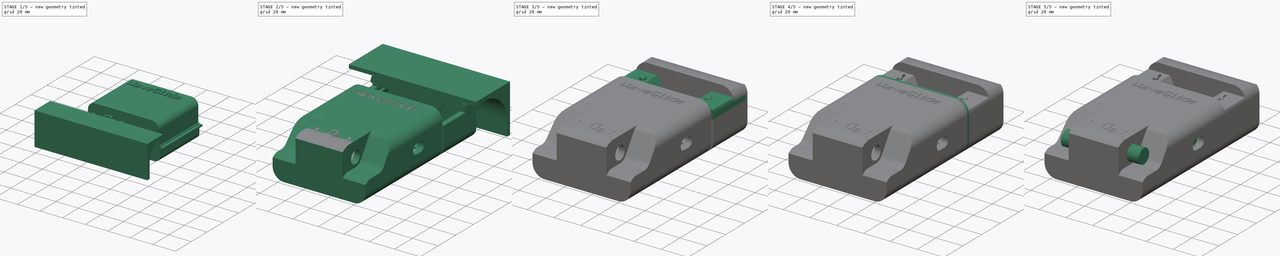
[diagram: build sequence overview — one tinted view per stage of 5, left to right]
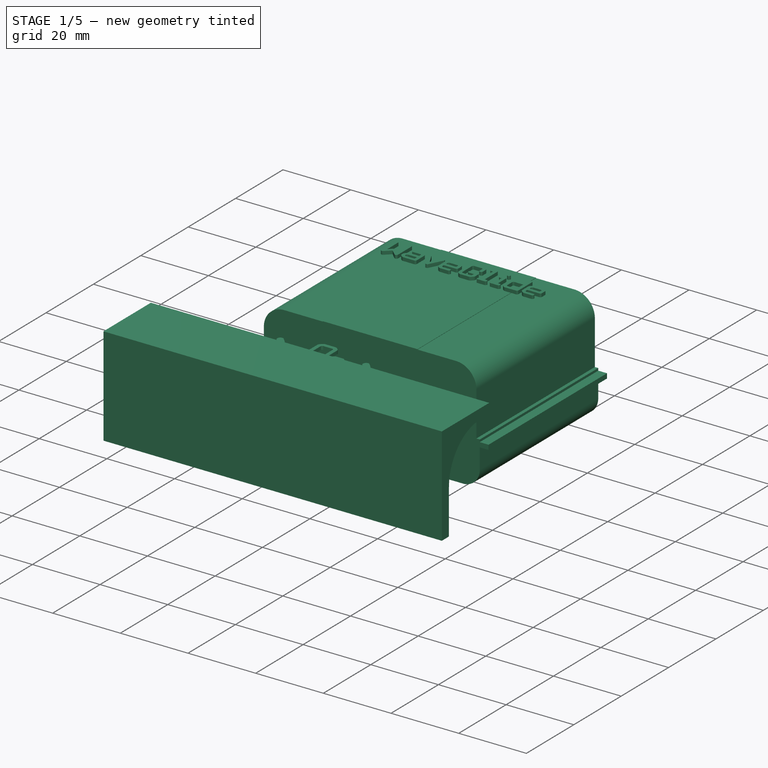
[diagram: stage 1 of 5 — iso view after this stage's code; geometry added in this stage tinted green]
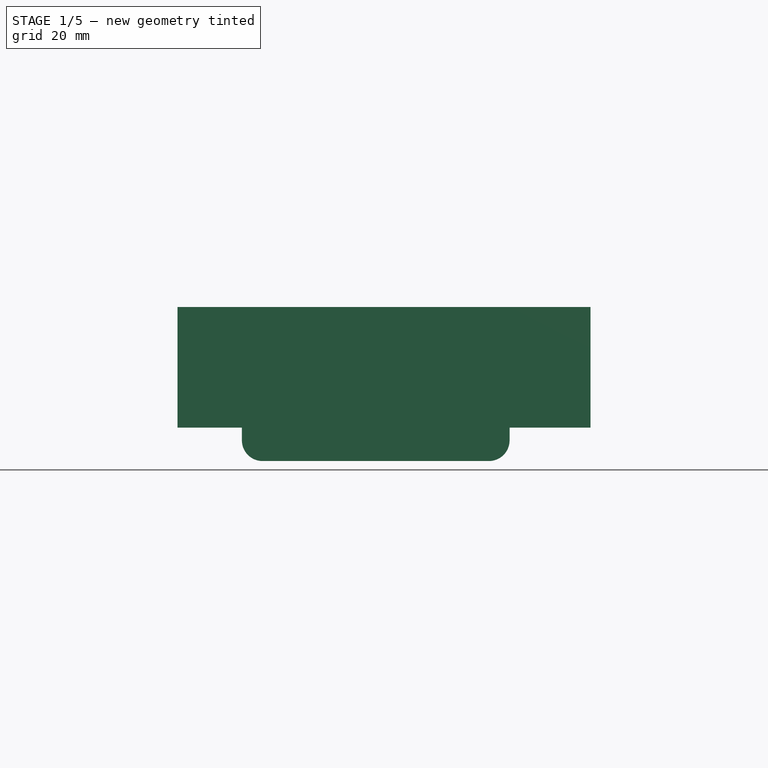
[diagram: stage 1 of 5 — front view after this stage's code; geometry added in this stage tinted green]
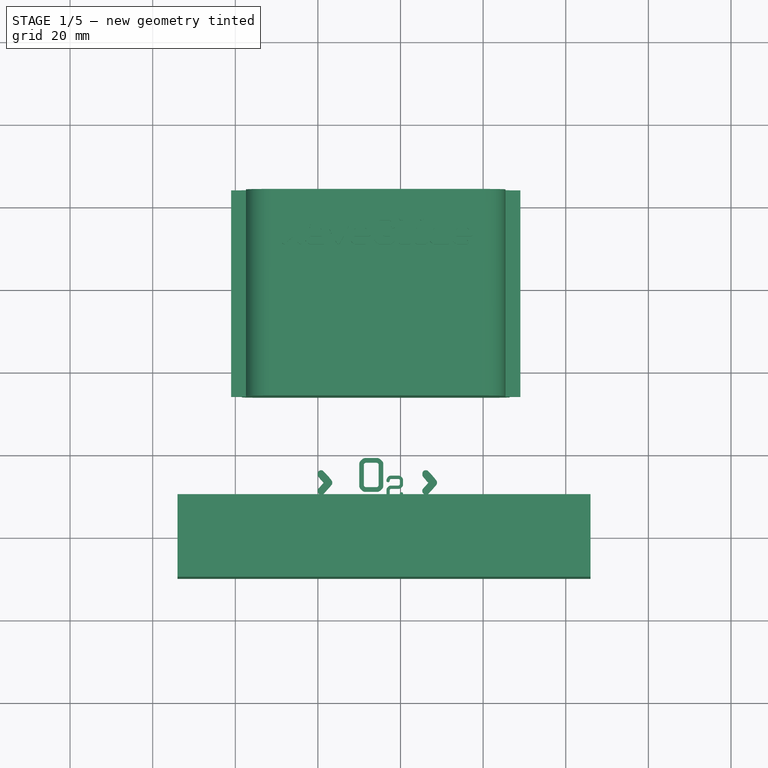
[diagram: stage 1 of 5 — top view after this stage's code; geometry added in this stage tinted green]
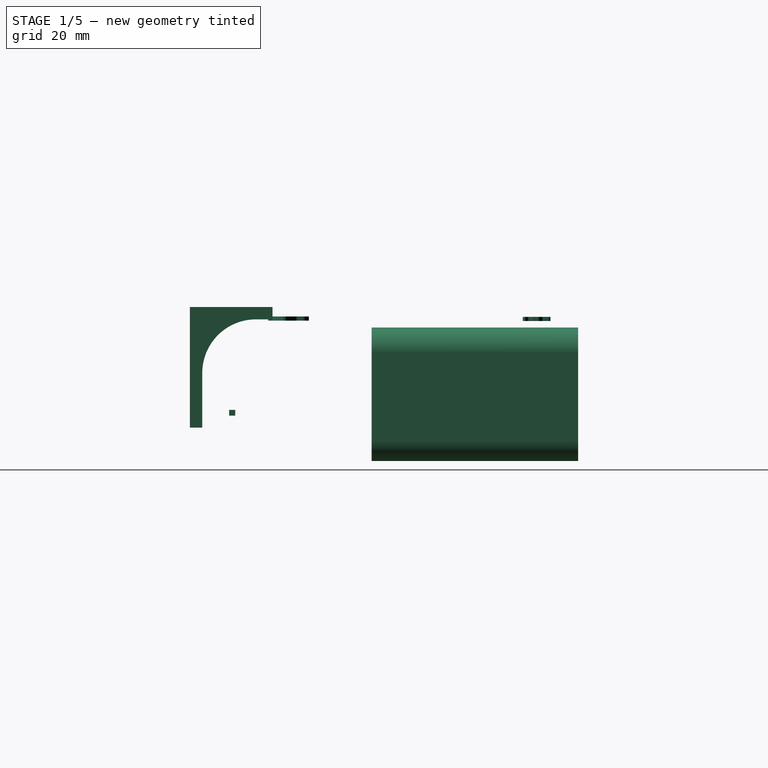
[diagram: stage 1 of 5 — right view after this stage's code; geometry added in this stage tinted green]
FCSTD DOCUMENT  (FreeCAD 0.15R4671 (Git))
Label: waveglide
License: All rights reserved
LicenseURL: http://en.wikipedia.org/wiki/All_rights_reserved
objects: Part::Extrusion×51, Sketcher::SketchObject×34, Part::Box×28, Part::MultiFuse×27, Part::Cut×24, Part::Feature×19, Part::Cylinder×11, App::DocumentObjectGroup×4, Part::Fillet×2, Part::Chamfer×1, Part::Loft×1
note: 198 computed .brp shape members not serialized (recipe doc carries the construction recipe); baked Part::Feature solids carry a one-line shape summary decoded from their .brp

FEATURE [Part::Box] Box018  label="Cube006"
  Height = 1.4
  Length = 70
  Placement = pos=(-1,-0.5,-0.1) rot=(0,0,1;0rad)
  Width = 1.5
FEATURE [Sketcher::SketchObject] Sketch065  label="internal_middle013"
  Placement = pos=(0,34,0) rot=(1,0,0;1.5708rad)
  sketch-geometry (24):
    g0: LineSegment StartX=1.6 StartY=-6.1 StartZ=0 EndX=1.6 EndY=-0.1 EndZ=0
    g1: LineSegment StartX=1.6 StartY=-0.1 StartZ=0 EndX=-1 EndY=-0.1 EndZ=0
    g2: LineSegment StartX=-1 StartY=-0.1 StartZ=0 EndX=-1 EndY=1.3 EndZ=0
    g3: LineSegment StartX=-1 StartY=1.3 StartZ=0 EndX=1.6 EndY=1.3 EndZ=0
    g4: LineSegment StartX=8.6 StartY=21.1 StartZ=0 EndX=20 EndY=21.1 EndZ=0
    g5: LineSegment StartX=20 StartY=21.1 StartZ=0 EndX=20 EndY=21.2 EndZ=0
    g6: LineSegment StartX=20 StartY=21.2 StartZ=0 EndX=48 EndY=21.2 EndZ=0
    g7: LineSegment StartX=48 StartY=21.2 StartZ=0 EndX=48 EndY=21.1 EndZ=0
    g8: LineSegment StartX=48 StartY=21.1 StartZ=0 EndX=59.4 EndY=21.1 EndZ=0
    g9: LineSegment StartX=66.4 StartY=1.3 StartZ=0 EndX=69 EndY=1.3 EndZ=0
    g10: LineSegment StartX=69 StartY=1.3 StartZ=0 EndX=69 EndY=-0.1 EndZ=0
    g11: LineSegment StartX=69 StartY=-0.1 StartZ=0 EndX=66.4 EndY=-0.1 EndZ=0
    g12: LineSegment StartX=66.4 StartY=-0.1 StartZ=0 EndX=66.4 EndY=-6.1 EndZ=0
    g13: LineSegment StartX=6.6 StartY=-11.1 StartZ=0 EndX=61.4 EndY=-11.1 EndZ=0
    g14: ArcOfCircle CenterX=6.6 CenterY=-6.1 CenterZ=0 NormalX=0 NormalY=0 NormalZ=1 Radius=5 StartAngle=3.14159 EndAngle=4.71239
    g15: ArcOfCircle CenterX=61.4 CenterY=-6.1 CenterZ=0 NormalX=0 NormalY=0 NormalZ=1 Radius=5 StartAngle=4.71239 EndAngle=6.28319
    g16: LineSegment StartX=1.6 StartY=1.3 StartZ=0 EndX=1.6 EndY=2 EndZ=0
    g17: LineSegment StartX=1.6 StartY=2 StartZ=0 EndX=2.6 EndY=2 EndZ=0
    g18: LineSegment StartX=2.6 StartY=2 StartZ=0 EndX=2.6 EndY=15.1 EndZ=0
    g19: LineSegment StartX=66.4 StartY=1.3 StartZ=0 EndX=66.4 EndY=2 EndZ=0
    g20: LineSegment StartX=66.4 StartY=2 StartZ=0 EndX=65.4 EndY=2 EndZ=0
    g21: LineSegment StartX=65.4 StartY=2 StartZ=0 EndX=65.4 EndY=15.1 EndZ=0
    g22: ArcOfCircle CenterX=8.6 CenterY=15.1 CenterZ=0 NormalX=0 NormalY=0 NormalZ=1 Radius=6 StartAngle=1.5708 EndAngle=3.14159
    g23: ArcOfCircle CenterX=59.4 CenterY=15.1 CenterZ=0 NormalX=0 NormalY=0 NormalZ=1 Radius=6 StartAngle=0 EndAngle=1.5708
  constraints (68):
    c: Vertical(g0)
    c: Coincident(g0,g1)
    c: Coincident(g1,g2)
    c: Vertical(g2)
    c: Coincident(g2,g3)
    c: Horizontal(g4)
    c: Coincident(g4,g5)
    c: Horizontal(g6)
    c: Coincident(g7,g8)
    c: Horizontal(g8)
    c: Horizontal(g9)
    c: Coincident(g9,g10)
    c: Vertical(g10)
    c: Coincident(g10,g11)
    c: Horizontal(g11)
    c: Coincident(g11,g12)
    c: Vertical(g12)
    c: Horizontal(g13)
    c: Horizontal(g3)
    c: Horizontal(g1)
    c: DistanceX(g3) = 1.6
    c: DistanceY(g3) = 1.3
    c: DistanceY(g0) = -0.1
    c: DistanceX(g0,g3) = 0
    c: DistanceX(g3) = 2.6
    c: DistanceX(g9) = 66.4
    c: DistanceX(g11,g9) = 0
    c: DistanceY(g9,g3) = 0
    c: DistanceY(g0,g11) = 0
    c: DistanceX(g9) = 2.6
    c: Tangent(g0,g14) = 1.5708
    c: Tangent(g13,g14) = -1.5708
    c: Tangent(g13,g15) = -1.5708
    c: Tangent(g12,g15) = 1.5708
    c: DistanceY(g0) = -6.1
    c: DistanceY(g12,g0) = 0
    c: DistanceY(g13) = -11.1
    c: DistanceY(g6) = 21.2
    c: Coincident(g7,g6)
    c: Coincident(g5,g6)
    c: DistanceX(g5) = 20
    c: DistanceX(g6) = 48
    c: Vertical(g5)
    c: Vertical(g7)
    c: Coincident(g3,g16)
    c: Vertical(g16)
    c: Coincident(g16,g17)
    c: Horizontal(g17)
    c: Coincident(g17,g18)
    c: DistanceX(g17) = 1
    c: DistanceY(g16) = 2
    c: Vertical(g18)
    c: Vertical(g19)
    c: Coincident(g19,g20)
    c: Horizontal(g20)
    c: Coincident(g20,g21)
    c: Vertical(g21)
    c: DistanceY(g20) = 2
    c: DistanceX(g20) = -1
    c: Coincident(g19,g9)
    c: Tangent(g18,g22) = 1.5708
    c: Tangent(g4,g22) = 1.5708
    c: Tangent(g8,g23) = 1.5708
    c: Tangent(g21,g23) = -1.5708
    c: DistanceY(g5) = 0.1
    c: DistanceX(g8,g21) = 6
    c: DistanceY(g7) = -0.1
    c: DistanceX(g4,g18) = -6
FEATURE [Part::Extrusion] Extrude048  label="internal_middle014"
  Base = -> Sketch065
  Dir = (0,50,0)
  Solid = true
FEATURE [Sketcher::SketchObject] Sketch067
  Placement = pos=(-14,0,0) rot=(0.57735,0.57735,0.57735;2.0944rad)
  sketch-geometry (7):
    g0: LineSegment StartX=6 StartY=23.2 StartZ=0 EndX=10 EndY=23.2 EndZ=0
    g1: LineSegment StartX=10 StartY=23.2 StartZ=0 EndX=10 EndY=26.2 EndZ=0
    g2: LineSegment StartX=10 StartY=26.2 StartZ=0 EndX=-10 EndY=26.2 EndZ=0
    g3: LineSegment StartX=-10 StartY=26.2 StartZ=0 EndX=-10 EndY=-3 EndZ=0
    g4: LineSegment StartX=-10 StartY=-3 StartZ=0 EndX=-7 EndY=-3 EndZ=0
    g5: LineSegment StartX=-7 StartY=-3 StartZ=0 EndX=-7 EndY=10.2 EndZ=0
    g6: ArcOfCircle CenterX=6 CenterY=10.2 CenterZ=0 NormalX=0 NormalY=0 NormalZ=1 Radius=13 StartAngle=1.5708 EndAngle=3.14159
  constraints (20):
    c: Horizontal(g0)
    c: Coincident(g0,g1)
    c: Vertical(g1)
    c: Coincident(g1,g2)
    c: Horizontal(g2)
    c: Coincident(g2,g3)
    c: Vertical(g3)
    c: Coincident(g3,g4)
    c: Horizontal(g4)
    c: Coincident(g4,g5)
    c: Vertical(g5)
    c: Tangent(g5,g6) = 1.5708
    c: Tangent(g0,g6) = 1.5708
    c: DistanceX(g0) = 6
    c: DistanceX(g0) = 10
    c: DistanceY(g0) = 23.2
    c: DistanceY(g1) = 3
    c: DistanceY(g4) = -3
    c: DistanceX(g5) = -7
    c: DistanceX(g4) = 3
FEATURE [Part::Extrusion] Extrude050  label="roundoff_lower001"
  Base = -> Sketch067
  Dir = (100,0,0)
  Solid = true
FEATURE [App::DocumentObjectGroup] Group004  label="shell_upper_old"
  Group = -> [Fillet,Fillet001,Cut012,Fusion030,Extrude053]
FEATURE [Part::Feature] path
  Placement = pos=(-31.5,98,25) rot=(0,0,1;0rad)
  shape: bbox 4.929 x 6.711 x 2e-07 mm, 0 faces, 0 solids (baked)
FEATURE [Part::Feature] path001
  Placement = pos=(-31.5,98,25) rot=(0,0,1;0rad)
  shape: bbox 4.929 x 4.76 x 2e-07 mm, 0 faces, 0 solids (baked)
FEATURE [Part::Feature] path002
  Placement = pos=(-31.5,98,25) rot=(0,0,1;0rad)
  shape: bbox 3.007 x 0.9857 x 2e-07 mm, 0 faces, 0 solids (baked)
FEATURE [Part::Feature] path003
  Placement = pos=(-31.5,98,25) rot=(0,0,1;0rad)
  shape: bbox 4.945 x 4.768 x 2e-07 mm, 0 faces, 0 solids (baked)
FEATURE [Part::Feature] path004
  Placement = pos=(-31.5,98,25) rot=(0,0,1;0rad)
  shape: bbox 4.929 x 4.76 x 2e-07 mm, 0 faces, 0 solids (baked)
FEATURE [Part::Feature] path005
  Placement = pos=(-31.5,98,25) rot=(0,0,1;0rad)
  shape: bbox 3.007 x 0.978 x 2e-07 mm, 0 faces, 0 solids (baked)
FEATURE [Part::Feature] path006
  Placement = pos=(-31.5,98,25) rot=(0,0,1;0rad)
  shape: bbox 4.929 x 6.678 x 2e-07 mm, 0 faces, 0 solids (baked)
FEATURE [Part::Feature] path007
  Placement = pos=(-31.5,98,25) rot=(0,0,1;0rad)
  shape: bbox 2.985 x 6.678 x 2e-07 mm, 0 faces, 0 solids (baked)
FEATURE [Part::Feature] path008
  Placement = pos=(-31.5,98,25) rot=(0,0,1;0rad)
  shape: bbox 0.9898 x 0.9505 x 2e-07 mm, 0 faces, 0 solids (baked)
FEATURE [Part::Feature] path009
  Placement = pos=(-31.5,98,25) rot=(0,0,1;0rad)
  shape: bbox 2.964 x 4.76 x 2e-07 mm, 0 faces, 0 solids (baked)
FEATURE [Part::Feature] path010
  Placement = pos=(-31.5,98,25) rot=(0,0,1;0rad)
  shape: bbox 4.929 x 6.655 x 2e-07 mm, 0 faces, 0 solids (baked)
FEATURE [Part::Feature] path011
  Placement = pos=(-31.5,98,25) rot=(0,0,1;0rad)
  shape: bbox 3.007 x 2.903 x 2e-07 mm, 0 faces, 0 solids (baked)
FEATURE [Part::Feature] path012
  Placement = pos=(-31.5,98,25) rot=(0,0,1;0rad)
  shape: bbox 4.929 x 4.76 x 2e-07 mm, 0 faces, 0 solids (baked)
FEATURE [Part::Feature] path013
  Placement = pos=(-31.5,98,25) rot=(0,0,1;0rad)
  shape: bbox 3.007 x 0.978 x 2e-07 mm, 0 faces, 0 solids (baked)
FEATURE [Part::Extrusion] Extrude061
  Base = -> path
  Dir = (0,0,1)
  Placement = pos=(0,0,-2.3) rot=(0,0,1;0rad)
  Solid = true
FEATURE [Part::Extrusion] Extrude062
  Base = -> path001
  Dir = (0,0,1)
  Placement = pos=(0,0,-2.3) rot=(0,0,1;0rad)
  Solid = true
FEATURE [Part::Extrusion] Extrude063
  Base = -> path002
  Dir = (0,0,1)
  Placement = pos=(0,0,-2.3) rot=(0,0,1;0rad)
  Solid = true
FEATURE [Part::Extrusion] Extrude064
  Base = -> path003
  Dir = (0,0,1)
  Placement = pos=(0,0,-2.3) rot=(0,0,1;0rad)
  Solid = true
FEATURE [Part::Extrusion] Extrude065
  Base = -> path004
  Dir = (0,0,1)
  Placement = pos=(0,0,-2.3) rot=(0,0,1;0rad)
  Solid = true
FEATURE [Part::Extrusion] Extrude066
  Base = -> path005
  Dir = (0,0,1)
  Placement = pos=(0,0,-2.3) rot=(0,0,1;0rad)
  Solid = true
FEATURE [Part::Extrusion] Extrude067
  Base = -> path006
  Dir = (0,0,1)
  Placement = pos=(0,0,-2.3) rot=(0,0,1;0rad)
  Solid = true
FEATURE [Part::Extrusion] Extrude068
  Base = -> path007
  Dir = (0,0,1)
  Placement = pos=(0,0,-2.3) rot=(0,0,1;0rad)
  Solid = true
FEATURE [Part::Extrusion] Extrude069
  Base = -> path008
  Dir = (0,0,1)
  Placement = pos=(0,0,-2.3) rot=(0,0,1;0rad)
  Solid = true
FEATURE [Part::Extrusion] Extrude070
  Base = -> path009
  Dir = (0,0,1)
  Placement = pos=(0,0,-2.3) rot=(0,0,1;0rad)
  Solid = true
FEATURE [Part::Extrusion] Extrude071
  Base = -> path010
  Dir = (0,0,1)
  Placement = pos=(0,0,-2.3) rot=(0,0,1;0rad)
  Solid = true
FEATURE [Part::Extrusion] Extrude072
  Base = -> path011
  Dir = (0,0,1)
  Placement = pos=(0,0,-2.3) rot=(0,0,1;0rad)
  Solid = true
FEATURE [Part::Extrusion] Extrude073
  Base = -> path012
  Dir = (0,0,1)
  Placement = pos=(0,0,-2.3) rot=(0,0,1;0rad)
  Solid = true
FEATURE [Part::Extrusion] Extrude074
  Base = -> path013
  Dir = (0,0,1)
  Placement = pos=(0,0,-2.3) rot=(0,0,1;0rad)
  Solid = true
FEATURE [Part::Cut] Cut026
  Base = -> Extrude071
  Tool = -> Extrude072
FEATURE [Part::Cut] Cut027
  Base = -> Extrude073
  Tool = -> Extrude074
FEATURE [Part::Cut] Cut028
  Base = -> Extrude065
  Tool = -> Extrude066
FEATURE [Part::Cut] Cut029
  Base = -> Extrude062
  Tool = -> Extrude063
FEATURE [Part::MultiFuse] Fusion040  label="waveglide_typo"
  Placement = pos=(0,0,0.1) rot=(0,0,1;0rad)
  Shapes = -> [Cut029,Extrude061,Extrude064,Extrude067,Extrude068,Extrude070,Extrude069,Cut026,Cut028,Cut027]
FEATURE [Part::Feature] path4952002
  shape: bbox 5.822 x 8.193 x 2e-07 mm, 0 faces, 0 solids (baked)
FEATURE [Part::Feature] path4952003
  shape: bbox 3.561 x 5.915 x 2e-07 mm, 0 faces, 0 solids (baked)
FEATURE [Part::Feature] path4952005
  shape: bbox 3.585 x 6.07 x 2e-07 mm, 0 faces, 0 solids (baked)
FEATURE [Part::Feature] path4952006
  shape: bbox 3.586 x 6.07 x 2e-07 mm, 0 faces, 0 solids (baked)
FEATURE [Part::Extrusion] Extrude093
  Base = -> path4952002
  Dir = (0,0,1)
  Solid = true
FEATURE [Part::Extrusion] Extrude094
  Base = -> path4952003
  Dir = (0,0,1)
  Solid = true
FEATURE [Part::Extrusion] Extrude096
  Base = -> path4952005
  Dir = (0,0,1)
  Placement = pos=(-8.5,42,22.9) rot=(0,0,1;0rad)
  Solid = true
FEATURE [Part::Extrusion] Extrude097
  Base = -> path4952006
  Dir = (0,0,1)
  Placement = pos=(-8.5,42,22.9) rot=(0,0,1;0rad)
  Solid = true
FEATURE [Part::Cut] Cut039  label="Cut040"
  Base = -> Extrude093
  Placement = pos=(-8.5,42,22.9) rot=(0,0,1;0rad)
  Tool = -> Extrude094
FEATURE [Part::Feature] path4952008
  shape: bbox 4.013 x 5.562 x 2e-07 mm, 0 faces, 0 solids (baked)
FEATURE [Part::Extrusion] Extrude099
  Base = -> path4952008
  Dir = (0,0,1)
  Placement = pos=(-8.5,42,22.9) rot=(0,0,1;0rad)
  Solid = true
FEATURE [Part::MultiFuse] Fusion048  label="typo"
  Shapes = -> [Cut039,Extrude099,Extrude096,Extrude097,Fusion040]
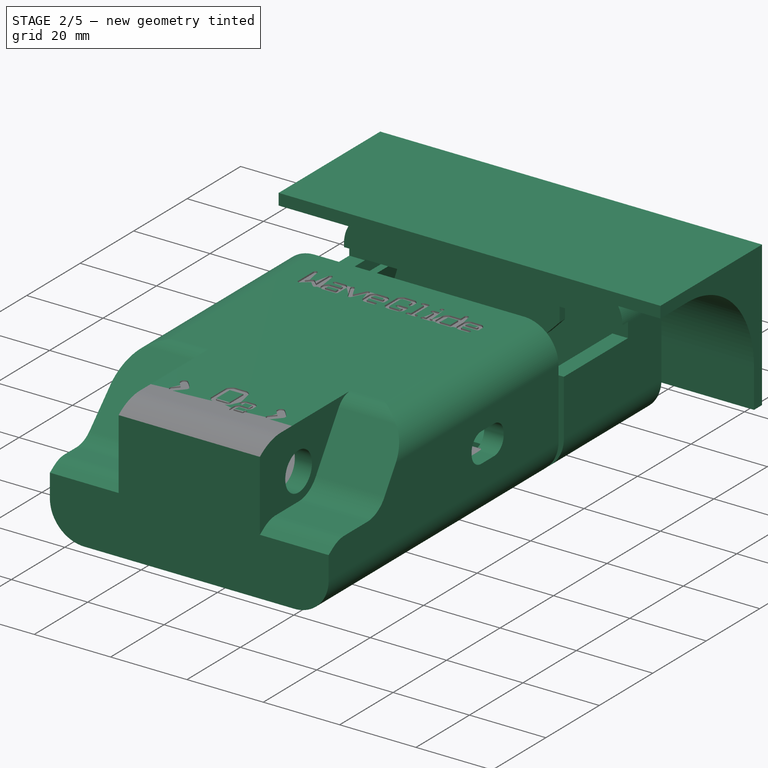
[diagram: stage 2 of 5 — iso view after this stage's code; geometry added in this stage tinted green]
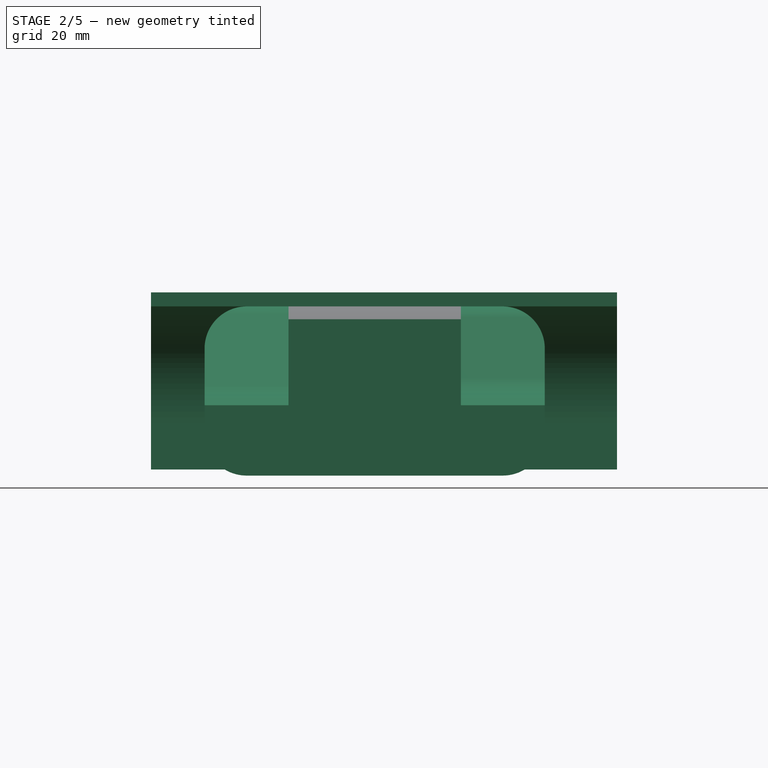
[diagram: stage 2 of 5 — front view after this stage's code; geometry added in this stage tinted green]
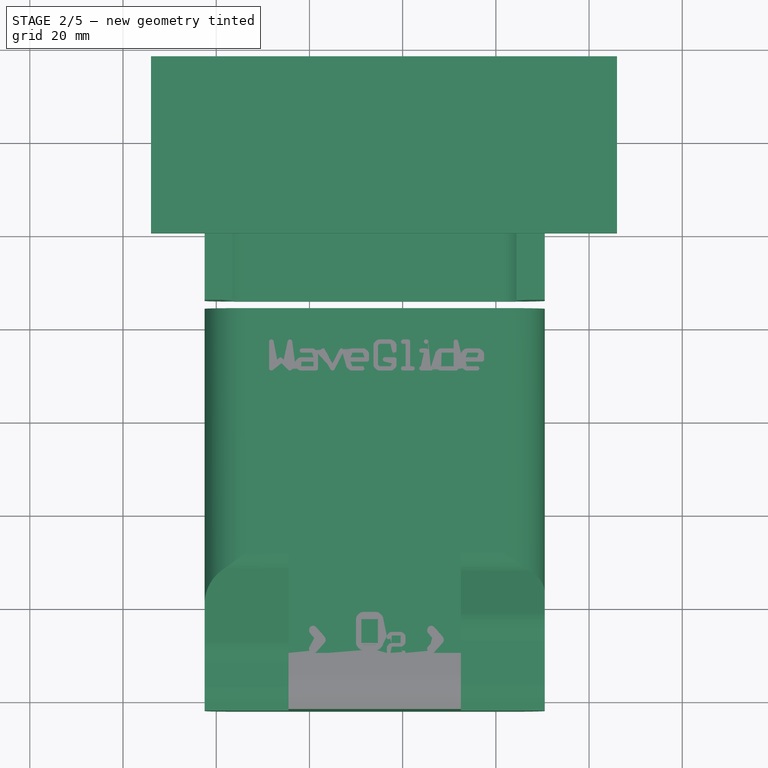
[diagram: stage 2 of 5 — top view after this stage's code; geometry added in this stage tinted green]
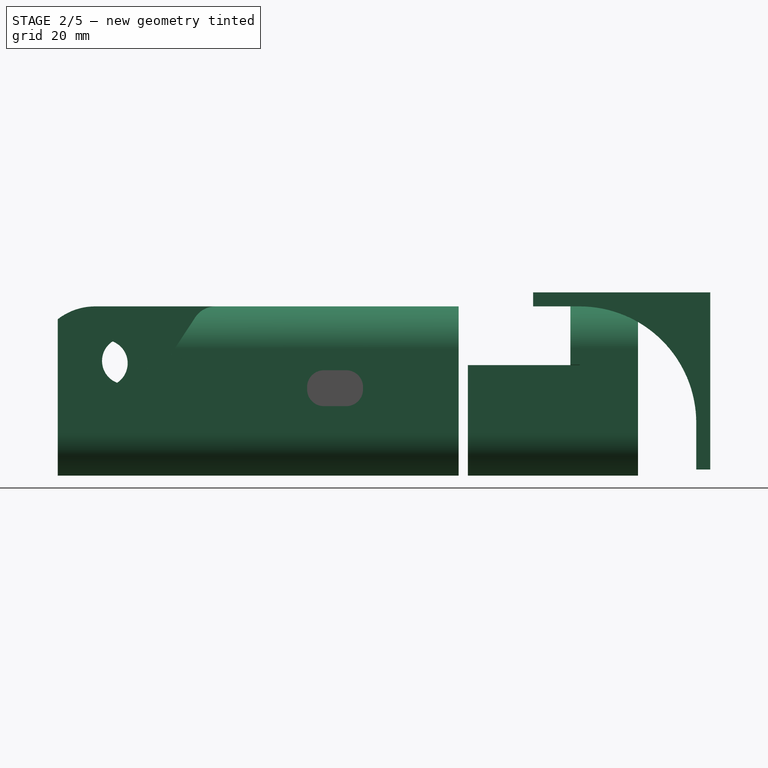
[diagram: stage 2 of 5 — right view after this stage's code; geometry added in this stage tinted green]
FEATURE [Sketcher::SketchObject] Sketch059  label="hose_cutouts009"
  Placement = pos=(70.5,0,0) rot=(0.57735,0.57735,0.57735;2.0944rad)
  sketch-geometry (11):
    g0: LineSegment StartX=4 StartY=4.36249 StartZ=0 EndX=12.5 EndY=4.36249 EndZ=0
    g1: LineSegment StartX=18.9687 StartY=7.85447 StartZ=0 EndX=27.5 EndY=20.8532 EndZ=0
    g2: ArcOfCircle CenterX=12.5 CenterY=12.1 CenterZ=0 NormalX=0 NormalY=0 NormalZ=1 Radius=7.73751 StartAngle=4.71239 EndAngle=5.70238
    g3: LineSegment StartX=31.8473 StartY=23.2 StartZ=0 EndX=33.8473 EndY=23.2 EndZ=0
    g4: LineSegment StartX=33.8473 StartY=23.2 StartZ=0 EndX=33.8473 EndY=25.2 EndZ=0
    g5: LineSegment StartX=33.8473 StartY=25.2 StartZ=0 EndX=-5 EndY=25.2 EndZ=0
    g6: LineSegment StartX=-5 StartY=25.2 StartZ=0 EndX=-5 EndY=2 EndZ=0
    g7: LineSegment StartX=-5 StartY=2 StartZ=0 EndX=-2 EndY=2 EndZ=0
    g8: LineSegment StartX=-2 StartY=2 StartZ=0 EndX=-0.5 EndY=3 EndZ=0
    g9: ArcOfCircle CenterX=31.8473 CenterY=18 CenterZ=0 NormalX=0 NormalY=0 NormalZ=1 Radius=5.2 StartAngle=1.5708 EndAngle=2.56079
    g10: ArcOfCircle CenterX=4 CenterY=-3.75 CenterZ=0 NormalX=0 NormalY=0 NormalZ=1 Radius=8.11249 StartAngle=1.5708 EndAngle=2.1588
  constraints (30):
    c: Horizontal(g0)
    c: Tangent(g0,g2) = -1.5708
    c: Tangent(g1,g2) = -1.5708
    c: DistanceX(g2) = 12.5
    c: DistanceY(g2) = 12.1
    c: Horizontal(g3)
    c: Coincident(g3,g4)
    c: Vertical(g4)
    c: Coincident(g4,g5)
    c: Horizontal(g5)
    c: Coincident(g5,g6)
    c: Vertical(g6)
    c: Coincident(g6,g7)
    c: Horizontal(g7)
    c: Coincident(g7,g8)
    c: Tangent(g1,g9) = 1.5708
    c: Tangent(g3,g9) = 1.5708
    c: Tangent(g8,g10) = 1.5708
    c: Tangent(g0,g10) = 1.5708
    c: DistanceY(g3) = 23.2
    c: DistanceX(g3) = 2
    c: DistanceY(g9) = 18
    c: DistanceY(g4) = 2
    c: DistanceY(g8) = 1
    c: DistanceX(g7) = -2
    c: DistanceY(g7) = 2
    c: DistanceX(g8) = -0.5
    c: DistanceX(g1) = 27.5
    c: DistanceX(g6) = -5
    c: DistanceX(g0) = 4
FEATURE [Part::Extrusion] Extrude044  label="hose_cutout_right004"
  Base = -> Sketch059
  Dir = (-18,0,0)
  Solid = true
FEATURE [Sketcher::SketchObject] Sketch060  label="hose_cutouts010"
  Placement = pos=(-2.5,0,0) rot=(0.57735,0.57735,0.57735;2.0944rad)
  sketch-geometry (11):
    g0: LineSegment StartX=3.5 StartY=4.2111 StartZ=0 EndX=8 EndY=4.2111 EndZ=0
    g1: LineSegment StartX=12.9165 StartY=6.27452 StartZ=0 EndX=28 EndY=21.6425 EndZ=0
    g2: ArcOfCircle CenterX=8 CenterY=11.1 CenterZ=0 NormalX=0 NormalY=0 NormalZ=1 Radius=6.8889 StartAngle=4.71239 EndAngle=5.50713
    g3: LineSegment StartX=31.7111 StartY=23.2 StartZ=0 EndX=33.7111 EndY=23.2 EndZ=0
    g4: LineSegment StartX=33.7111 StartY=23.2 StartZ=0 EndX=33.7111 EndY=25.2 EndZ=0
    g5: LineSegment StartX=33.7111 StartY=25.2 StartZ=0 EndX=-5 EndY=25.2 EndZ=0
    g6: LineSegment StartX=-5 StartY=25.2 StartZ=0 EndX=-5 EndY=2 EndZ=0
    g7: LineSegment StartX=-5 StartY=2 StartZ=0 EndX=-2 EndY=2 EndZ=0
    g8: LineSegment StartX=-2 StartY=2 StartZ=0 EndX=-0.5 EndY=3 EndZ=0
    g9: ArcOfCircle CenterX=31.7111 CenterY=18 CenterZ=0 NormalX=0 NormalY=0 NormalZ=1 Radius=5.2 StartAngle=1.5708 EndAngle=2.36553
    g10: ArcOfCircle CenterX=3.5 CenterY=-3 CenterZ=0 NormalX=0 NormalY=0 NormalZ=1 Radius=7.2111 StartAngle=1.5708 EndAngle=2.1588
  constraints (30):
    c: Horizontal(g0)
    c: Tangent(g0,g2) = -1.5708
    c: Tangent(g1,g2) = -1.5708
    c: DistanceX(g2) = 8
    c: DistanceY(g2) = 11.1
    c: Horizontal(g3)
    c: Coincident(g3,g4)
    c: Vertical(g4)
    c: Coincident(g4,g5)
    c: Horizontal(g5)
    c: Coincident(g5,g6)
    c: Vertical(g6)
    c: Coincident(g6,g7)
    c: Horizontal(g7)
    c: Coincident(g7,g8)
    c: Tangent(g1,g9) = 1.5708
    c: Tangent(g3,g9) = 1.5708
    c: Tangent(g8,g10) = 1.5708
    c: Tangent(g0,g10) = 1.5708
    c: DistanceY(g3) = 23.2
    c: DistanceX(g3) = 2
    c: DistanceY(g9) = 18
    c: DistanceY(g4) = 2
    c: DistanceY(g8) = 1
    c: DistanceX(g7) = -2
    c: DistanceY(g7) = 2
    c: DistanceX(g8) = -0.5
    c: DistanceX(g1) = 28
    c: DistanceX(g6) = -5
    c: DistanceX(g10) = 3.5
FEATURE [Part::Extrusion] Extrude045  label="hose_cutout_left"
  Base = -> Sketch060
  Dir = (18,0,0)
  Solid = true
FEATURE [Part::MultiFuse] Fusion025
  Shapes = -> [Extrude044,Extrude045]
FEATURE [Sketcher::SketchObject] Sketch061  label="bot2_006"
  Placement = pos=(0,0,0) rot=(1,0,0;1.5708rad)
  sketch-geometry (12):
    g0: LineSegment StartX=-2.5 StartY=-4.1 StartZ=0 EndX=-2.5 EndY=14.1 EndZ=0
    g1: LineSegment StartX=6.6 StartY=23.2 StartZ=0 EndX=14 EndY=23.2 EndZ=0
    g2: LineSegment StartX=14 StartY=23.2 StartZ=0 EndX=24 EndY=23.2 EndZ=0
    g3: LineSegment StartX=24 StartY=23.2 StartZ=0 EndX=46 EndY=23.2 EndZ=0
    g4: LineSegment StartX=46 StartY=23.2 StartZ=0 EndX=56 EndY=23.2 EndZ=0
    g5: LineSegment StartX=56 StartY=23.2 StartZ=0 EndX=61.4 EndY=23.2 EndZ=0
    g6: LineSegment StartX=70.5 StartY=14.1 StartZ=0 EndX=70.5 EndY=-4.1 EndZ=0
    g7: LineSegment StartX=6.5 StartY=-13.1 StartZ=0 EndX=61.5 EndY=-13.1 EndZ=0
    g8: ArcOfCircle CenterX=6.5 CenterY=-4.1 CenterZ=0 NormalX=0 NormalY=0 NormalZ=1 Radius=9 StartAngle=3.14159 EndAngle=4.71239
    g9: ArcOfCircle CenterX=61.5 CenterY=-4.1 CenterZ=0 NormalX=0 NormalY=0 NormalZ=1 Radius=9 StartAngle=4.71239 EndAngle=6.28319
    g10: ArcOfCircle CenterX=6.6 CenterY=14.1 CenterZ=0 NormalX=0 NormalY=0 NormalZ=1 Radius=9.1 StartAngle=1.5708 EndAngle=3.14159
    g11: ArcOfCircle CenterX=61.4 CenterY=14.1 CenterZ=0 NormalX=0 NormalY=0 NormalZ=1 Radius=9.1 StartAngle=0 EndAngle=1.5708
  constraints (28):
    c: Vertical(g0)
    c: Horizontal(g1)
    c: Coincident(g1,g2)
    c: Horizontal(g3)
    c: Coincident(g4,g5)
    c: Horizontal(g5)
    c: Vertical(g6)
    c: Horizontal(g7)
    c: Tangent(g0,g8) = 1.5708
    c: Tangent(g7,g8) = -1.5708
    c: Tangent(g7,g9) = -1.5708
    c: Tangent(g6,g9) = 1.5708
    c: DistanceY(g0) = -4.1
    c: DistanceY(g0,g6) = 0
    c: Tangent(g0,g10) = 1.5708
    c: Tangent(g1,g10) = 1.5708
    c: Tangent(g5,g11) = 1.5708
    c: Tangent(g6,g11) = 1.5708
    c: DistanceY(g6) = 14.1
    c: Horizontal(g2)
    c: DistanceX(g2) = 10
    c: Horizontal(g4)
    c: DistanceX(g4) = 10
    c: DistanceY(g0) = 14.1
    c: Coincident(g3,g2)
    c: Coincident(g4,g3)
    c: DistanceX(g1) = 14
    c: DistanceX(g4) = 56
FEATURE [Part::Extrusion] Extrude046
  Base = -> Sketch061
  Dir = (0,86,0)
  Placement = pos=(0,-2,0) rot=(0,0,1;0rad)
  Solid = true
FEATURE [Part::Cut] Cut017  label="external_lower_004"
  Base = -> Extrude046
  Tool = -> Fusion025
FEATURE [Sketcher::SketchObject] Sketch062  label="internal_middle012"
  Placement = pos=(0,34,0) rot=(1,0,0;1.5708rad)
  sketch-geometry (24):
    g0: LineSegment StartX=1.6 StartY=-6.1 StartZ=0 EndX=1.6 EndY=-0.1 EndZ=0
    g1: LineSegment StartX=1.6 StartY=-0.1 StartZ=0 EndX=-1 EndY=-0.1 EndZ=0
    g2: LineSegment StartX=-1 StartY=-0.1 StartZ=0 EndX=-1 EndY=1.3 EndZ=0
    g3: LineSegment StartX=-1 StartY=1.3 StartZ=0 EndX=1.6 EndY=1.3 EndZ=0
    g4: LineSegment StartX=8.6 StartY=21.1 StartZ=0 EndX=20 EndY=21.1 EndZ=0
    g5: LineSegment StartX=20 StartY=21.1 StartZ=0 EndX=20 EndY=21.2 EndZ=0
    g6: LineSegment StartX=20 StartY=21.2 StartZ=0 EndX=48 EndY=21.2 EndZ=0
    g7: LineSegment StartX=48 StartY=21.2 StartZ=0 EndX=48 EndY=21.1 EndZ=0
    g8: LineSegment StartX=48 StartY=21.1 StartZ=0 EndX=59.4 EndY=21.1 EndZ=0
    g9: LineSegment StartX=66.4 StartY=1.3 StartZ=0 EndX=69 EndY=1.3 EndZ=0
    g10: LineSegment StartX=69 StartY=1.3 StartZ=0 EndX=69 EndY=-0.1 EndZ=0
    g11: LineSegment StartX=69 StartY=-0.1 StartZ=0 EndX=66.4 EndY=-0.1 EndZ=0
    g12: LineSegment StartX=66.4 StartY=-0.1 StartZ=0 EndX=66.4 EndY=-6.1 EndZ=0
    g13: LineSegment StartX=6.6 StartY=-11.1 StartZ=0 EndX=61.4 EndY=-11.1 EndZ=0
    g14: ArcOfCircle CenterX=6.6 CenterY=-6.1 CenterZ=0 NormalX=0 NormalY=0 NormalZ=1 Radius=5 StartAngle=3.14159 EndAngle=4.71239
    g15: ArcOfCircle CenterX=61.4 CenterY=-6.1 CenterZ=0 NormalX=0 NormalY=0 NormalZ=1 Radius=5 StartAngle=4.71239 EndAngle=6.28319
    g16: LineSegment StartX=1.6 StartY=1.3 StartZ=0 EndX=1.6 EndY=2 EndZ=0
    g17: LineSegment StartX=1.6 StartY=2 StartZ=0 EndX=2.6 EndY=2 EndZ=0
    g18: LineSegment StartX=2.6 StartY=2 StartZ=0 EndX=2.6 EndY=15.1 EndZ=0
    g19: LineSegment StartX=66.4 StartY=1.3 StartZ=0 EndX=66.4 EndY=2 EndZ=0
    g20: LineSegment StartX=66.4 StartY=2 StartZ=0 EndX=65.4 EndY=2 EndZ=0
    g21: LineSegment StartX=65.4 StartY=2 StartZ=0 EndX=65.4 EndY=15.1 EndZ=0
    g22: ArcOfCircle CenterX=8.6 CenterY=15.1 CenterZ=0 NormalX=0 NormalY=0 NormalZ=1 Radius=6 StartAngle=1.5708 EndAngle=3.14159
    g23: ArcOfCircle CenterX=59.4 CenterY=15.1 CenterZ=0 NormalX=0 NormalY=0 NormalZ=1 Radius=6 StartAngle=0 EndAngle=1.5708
  constraints (68):
    c: Vertical(g0)
    c: Coincident(g0,g1)
    c: Coincident(g1,g2)
    c: Vertical(g2)
    c: Coincident(g2,g3)
    c: Horizontal(g4)
    c: Coincident(g4,g5)
    c: Horizontal(g6)
    c: Coincident(g7,g8)
    c: Horizontal(g8)
    c: Horizontal(g9)
    c: Coincident(g9,g10)
    c: Vertical(g10)
    c: Coincident(g10,g11)
    c: Horizontal(g11)
    c: Coincident(g11,g12)
    c: Vertical(g12)
    c: Horizontal(g13)
    c: Horizontal(g3)
    c: Horizontal(g1)
    c: DistanceX(g3) = 1.6
    c: DistanceY(g3) = 1.3
    c: DistanceY(g0) = -0.1
    c: DistanceX(g0,g3) = 0
    c: DistanceX(g3) = 2.6
    c: DistanceX(g9) = 66.4
    c: DistanceX(g11,g9) = 0
    c: DistanceY(g9,g3) = 0
    c: DistanceY(g0,g11) = 0
    c: DistanceX(g9) = 2.6
    c: Tangent(g0,g14) = 1.5708
    c: Tangent(g13,g14) = -1.5708
    c: Tangent(g13,g15) = -1.5708
    c: Tangent(g12,g15) = 1.5708
    c: DistanceY(g0) = -6.1
    c: DistanceY(g12,g0) = 0
    c: DistanceY(g13) = -11.1
    c: DistanceY(g6) = 21.2
    c: Coincident(g7,g6)
    c: Coincident(g5,g6)
    c: DistanceX(g5) = 20
    c: DistanceX(g6) = 48
    c: Vertical(g5)
    c: Vertical(g7)
    c: Coincident(g3,g16)
    c: Vertical(g16)
    c: Coincident(g16,g17)
    c: Horizontal(g17)
    c: Coincident(g17,g18)
    c: DistanceX(g17) = 1
    c: DistanceY(g16) = 2
    c: Vertical(g18)
    c: Vertical(g19)
    c: Coincident(g19,g20)
    c: Horizontal(g20)
    c: Coincident(g20,g21)
    c: Vertical(g21)
    c: DistanceY(g20) = 2
    c: DistanceX(g20) = -1
    c: Coincident(g19,g9)
    c: Tangent(g18,g22) = 1.5708
    c: Tangent(g4,g22) = 1.5708
    c: Tangent(g8,g23) = 1.5708
    c: Tangent(g21,g23) = -1.5708
    c: DistanceY(g5) = 0.1
    c: DistanceX(g8,g21) = 6
    c: DistanceY(g7) = -0.1
    c: DistanceX(g4,g18) = -6
FEATURE [Sketcher::SketchObject] Sketch063  label="internal_valve_009"
  Placement = pos=(0,1,0) rot=(1,0,0;1.5708rad)
  sketch-geometry (18):
    g0: LineSegment StartX=1.6 StartY=-6.1 StartZ=0 EndX=1.6 EndY=-0.1 EndZ=0
    g1: LineSegment StartX=1.6 StartY=-0.1 StartZ=0 EndX=-1 EndY=-0.1 EndZ=0
    g2: LineSegment StartX=-1 StartY=-0.1 StartZ=0 EndX=-1 EndY=1.3 EndZ=0
    g3: LineSegment StartX=-1 StartY=1.3 StartZ=0 EndX=1.6 EndY=1.3 EndZ=0
    g4: LineSegment StartX=1.6 StartY=1.3 StartZ=0 EndX=1.6 EndY=2 EndZ=0
    g5: LineSegment StartX=1.6 StartY=2 StartZ=0 EndX=20 EndY=2 EndZ=0
    g6: LineSegment StartX=20 StartY=2 StartZ=0 EndX=20 EndY=21.2 EndZ=0
    g7: LineSegment StartX=20 StartY=21.2 StartZ=0 EndX=48 EndY=21.2 EndZ=0
    g8: LineSegment StartX=48 StartY=21.2 StartZ=0 EndX=48 EndY=2 EndZ=0
    g9: LineSegment StartX=48 StartY=2 StartZ=0 EndX=66.4 EndY=2 EndZ=0
    g10: LineSegment StartX=66.4 StartY=2 StartZ=0 EndX=66.4 EndY=1.3 EndZ=0
    g11: LineSegment StartX=66.4 StartY=1.3 StartZ=0 EndX=69 EndY=1.3 EndZ=0
    g12: LineSegment StartX=69 StartY=1.3 StartZ=0 EndX=69 EndY=-0.1 EndZ=0
    g13: LineSegment StartX=69 StartY=-0.1 StartZ=0 EndX=66.4 EndY=-0.1 EndZ=0
    g14: LineSegment StartX=66.4 StartY=-0.1 StartZ=0 EndX=66.4 EndY=-6.1 EndZ=0
    g15: LineSegment StartX=6.6 StartY=-11.1 StartZ=0 EndX=61.4 EndY=-11.1 EndZ=0
    g16: ArcOfCircle CenterX=6.6 CenterY=-6.1 CenterZ=0 NormalX=0 NormalY=0 NormalZ=1 Radius=5 StartAngle=3.14159 EndAngle=4.71239
    g17: ArcOfCircle CenterX=61.4 CenterY=-6.1 CenterZ=0 NormalX=0 NormalY=0 NormalZ=1 Radius=5 StartAngle=4.71239 EndAngle=6.28319
  constraints (52):
    c: Vertical(g0)
    c: Coincident(g0,g1)
    c: Coincident(g1,g2)
    c: Vertical(g2)
    c: Coincident(g2,g3)
    c: Coincident(g3,g4)
    c: Coincident(g4,g5)
    c: Horizontal(g5)
    c: Coincident(g5,g6)
    c: Vertical(g6)
    c: Horizontal(g7)
    c: Vertical(g8)
    c: Coincident(g8,g9)
    c: Horizontal(g9)
    c: Coincident(g9,g10)
    c: Coincident(g10,g11)
    c: Horizontal(g11)
    c: Coincident(g11,g12)
    c: Vertical(g12)
    c: Coincident(g12,g13)
    c: Horizontal(g13)
    c: Coincident(g13,g14)
    c: Vertical(g14)
    c: Horizontal(g15)
    c: Horizontal(g3)
    c: Vertical(g4)
    c: Horizontal(g1)
    c: Vertical(g10)
    c: DistanceX(g3) = 1.6
    c: DistanceY(g3) = 1.3
    c: DistanceY(g0) = -0.1
    c: DistanceX(g0,g3) = 0
    c: DistanceX(g3) = 2.6
    c: DistanceY(g5) = 2
    c: DistanceY(g8) = 2
    c: DistanceX(g10) = 66.4
    c: DistanceX(g13,g10) = 0
    c: DistanceY(g10,g3) = 0
    c: DistanceY(g0,g13) = 0
    c: DistanceX(g11) = 2.6
    c: Tangent(g0,g16) = 1.5708
    c: Tangent(g15,g16) = -1.5708
    c: Tangent(g15,g17) = -1.5708
    c: Tangent(g14,g17) = 1.5708
    c: DistanceY(g0) = -6.1
    c: DistanceY(g14,g0) = 0
    c: DistanceY(g15) = -11.1
    c: DistanceY(g7) = 21.2
    c: Coincident(g6,g7)
    c: Coincident(g7,g8)
    c: DistanceX(g7) = 48
    c: DistanceX(g6) = 20
FEATURE [Sketcher::SketchObject] Sketch064  label="internal_valve_010"
  Placement = pos=(0,14,0) rot=(1,0,0;1.5708rad)
  sketch-geometry (24):
    g0: LineSegment StartX=1.6 StartY=-6.1 StartZ=0 EndX=1.6 EndY=-0.1 EndZ=0
    g1: LineSegment StartX=1.6 StartY=-0.1 StartZ=0 EndX=-1 EndY=-0.1 EndZ=0
    g2: LineSegment StartX=-1 StartY=-0.1 StartZ=0 EndX=-1 EndY=1.3 EndZ=0
    g3: LineSegment StartX=-1 StartY=1.3 StartZ=0 EndX=1.6 EndY=1.3 EndZ=0
    g4: LineSegment StartX=1.6 StartY=1.3 StartZ=0 EndX=1.6 EndY=2 EndZ=0
    g5: LineSegment StartX=20 StartY=2 StartZ=0 EndX=20 EndY=21.2 EndZ=0
    g6: LineSegment StartX=20 StartY=21.2 StartZ=0 EndX=48 EndY=21.2 EndZ=0
    g7: LineSegment StartX=48 StartY=21.2 StartZ=0 EndX=48 EndY=2 EndZ=0
    g8: LineSegment StartX=66.4 StartY=2 StartZ=0 EndX=66.4 EndY=1.3 EndZ=0
    g9: LineSegment StartX=66.4 StartY=1.3 StartZ=0 EndX=69 EndY=1.3 EndZ=0
    g10: LineSegment StartX=69 StartY=1.3 StartZ=0 EndX=69 EndY=-0.1 EndZ=0
    g11: LineSegment StartX=69 StartY=-0.1 StartZ=0 EndX=66.4 EndY=-0.1 EndZ=0
    g12: LineSegment StartX=66.4 StartY=-0.1 StartZ=0 EndX=66.4 EndY=-6.1 EndZ=0
    g13: LineSegment StartX=6.6 StartY=-11.1 StartZ=0 EndX=61.4 EndY=-11.1 EndZ=0
    g14: ArcOfCircle CenterX=6.6 CenterY=-6.1 CenterZ=0 NormalX=0 NormalY=0 NormalZ=1 Radius=5 StartAngle=3.14159 EndAngle=4.71239
    g15: ArcOfCircle CenterX=61.4 CenterY=-6.1 CenterZ=0 NormalX=0 NormalY=0 NormalZ=1 Radius=5 StartAngle=4.71239 EndAngle=6.28319
    g16: LineSegment StartX=65.4 StartY=2 StartZ=0 EndX=66.4 EndY=2 EndZ=0
    g17: LineSegment StartX=2.6 StartY=2 StartZ=0 EndX=1.6 EndY=2 EndZ=0
    g18: LineSegment StartX=2.6 StartY=2 StartZ=0 EndX=2.7 EndY=2 EndZ=0
    g19: LineSegment StartX=65.3 StartY=2 StartZ=0 EndX=65.4 EndY=2 EndZ=0
    g20: LineSegment StartX=20 StartY=2 StartZ=0 EndX=2.8 EndY=2 EndZ=0
    g21: LineSegment StartX=2.8 StartY=2 StartZ=0 EndX=2.7 EndY=2 EndZ=0
    g22: LineSegment StartX=48 StartY=2 StartZ=0 EndX=65.2 EndY=2 EndZ=0
    g23: LineSegment StartX=65.2 StartY=2 StartZ=0 EndX=65.3 EndY=2 EndZ=0
  constraints (70):
    c: Vertical(g0)
    c: Coincident(g0,g1)
    c: Coincident(g1,g2)
    c: Vertical(g2)
    c: Coincident(g2,g3)
    c: Coincident(g3,g4)
    c: Vertical(g5)
    c: Horizontal(g6)
    c: Vertical(g7)
    c: Coincident(g8,g9)
    c: Horizontal(g9)
    c: Coincident(g9,g10)
    c: Vertical(g10)
    c: Coincident(g10,g11)
    c: Horizontal(g11)
    c: Coincident(g11,g12)
    c: Vertical(g12)
    c: Horizontal(g13)
    c: Horizontal(g3)
    c: Vertical(g4)
    c: Horizontal(g1)
    c: Vertical(g8)
    c: DistanceX(g3) = 1.6
    c: DistanceY(g3) = 1.3
    c: DistanceY(g0) = -0.1
    c: DistanceX(g0,g3) = 0
    c: DistanceX(g3) = 2.6
    c: DistanceY(g5) = 2
    c: DistanceY(g7) = 2
    c: DistanceX(g8) = 66.4
    c: DistanceX(g11,g8) = 0
    c: DistanceY(g8,g3) = 0
    c: DistanceY(g0,g11) = 0
    c: DistanceX(g9) = 2.6
    c: Tangent(g0,g14) = 1.5708
    c: Tangent(g13,g14) = -1.5708
    c: Tangent(g13,g15) = -1.5708
    c: Tangent(g12,g15) = 1.5708
    c: DistanceY(g0) = -6.1
    c: DistanceY(g12,g0) = 0
    c: DistanceY(g13) = -11.1
    c: DistanceY(g6) = 21.2
    c: Coincident(g5,g6)
    c: Coincident(g6,g7)
    c: DistanceX(g6) = 48
    c: DistanceX(g5) = 20
    c: Coincident(g16,g8)
    c: Horizontal(g16)
    c: DistanceX(g16) = 1
    c: Coincident(g17,g4)
    c: Horizontal(g17)
    c: DistanceX(g17) = -1
    c: Coincident(g17,g18)
    c: Horizontal(g18)
    c: DistanceX(g18) = 0.1
    c: Horizontal(g19)
    c: Coincident(g16,g19)
    c: DistanceX(g19) = 0.1
    c: Coincident(g5,g20)
    c: Horizontal(g20)
    c: Coincident(g20,g21)
    c: Coincident(g21,g18)
    c: Horizontal(g21)
    c: DistanceX(g21) = -0.1
    c: Coincident(g7,g22)
    c: Horizontal(g22)
    c: Coincident(g22,g23)
    c: Coincident(g23,g19)
    c: Horizontal(g23)
    c: DistanceX(g23) = 0.1
FEATURE [Part::Loft] Loft003  label="internal_loft004"
  Closed = false
  Ruled = false
  Sections = -> [Sketch064,Sketch062]
  Solid = true
FEATURE [Part::Extrusion] Extrude047  label="internal_ext_005"
  Base = -> Sketch063
  Dir = (0,13,0)
  Solid = true
FEATURE [Part::MultiFuse] Fusion026  label="internal_005"
  Shapes = -> [Extrude047,Box018]
FEATURE [Part::MultiFuse] Fusion027  label="internal_lower_004"
  Shapes = -> [Extrude048,Loft003,Fusion026]
FEATURE [Part::Cylinder] Cylinder015  label="O2in006"
  Angle = 360
  Height = 17.5
  Placement = pos=(6.5,8,11) rot=(0,1,0;1.5708rad)
  Radius = 5
FEATURE [Part::Cylinder] Cylinder016  label="O2out006"
  Angle = 360
  Height = 17.4
  Placement = pos=(44,12.5,11.5) rot=(0,1,0;1.5708rad)
  Radius = 5
FEATURE [Sketcher::SketchObject] Sketch066  label="usb_charge005"
  Placement = pos=(80,0,0) rot=(0.57735,0.57735,0.57735;2.0944rad)
  sketch-geometry (8):
    g0: LineSegment StartX=55.1 StartY=9.5 StartZ=0 EndX=59.9 EndY=9.5 EndZ=0
    g1: LineSegment StartX=63.5 StartY=5.9 StartZ=0 EndX=63.5 EndY=5.4 EndZ=0
    g2: LineSegment StartX=59.9 StartY=1.8 StartZ=0 EndX=55.1 EndY=1.8 EndZ=0
    g3: LineSegment StartX=51.5 StartY=5.4 StartZ=0 EndX=51.5 EndY=5.9 EndZ=0
    g4: ArcOfCircle CenterX=55.1 CenterY=5.9 CenterZ=0 NormalX=0 NormalY=0 NormalZ=1 Radius=3.6 StartAngle=1.5708 EndAngle=3.14159
    g5: ArcOfCircle CenterX=59.9 CenterY=5.9 CenterZ=0 NormalX=0 NormalY=0 NormalZ=1 Radius=3.6 StartAngle=0 EndAngle=1.5708
    g6: ArcOfCircle CenterX=59.9 CenterY=5.4 CenterZ=0 NormalX=0 NormalY=0 NormalZ=1 Radius=3.6 StartAngle=4.71239 EndAngle=6.28319
    g7: ArcOfCircle CenterX=55.1 CenterY=5.4 CenterZ=0 NormalX=0 NormalY=0 NormalZ=1 Radius=3.6 StartAngle=3.14159 EndAngle=4.71239
  constraints (20):
    c: Horizontal(g0)
    c: Horizontal(g2)
    c: Vertical(g1)
    c: Vertical(g3)
    c: Tangent(g3,g4) = 1.5708
    c: Tangent(g0,g4) = 1.5708
    c: Tangent(g0,g5) = 1.5708
    c: Tangent(g1,g5) = 1.5708
    c: Tangent(g1,g6) = 1.5708
    c: Tangent(g2,g6) = 1.5708
    c: Tangent(g2,g7) = 1.5708
    c: Tangent(g3,g7) = 1.5708
    c: DistanceX(g3) = 51.5
    c: DistanceX(g1) = 63.5
    c: DistanceY(g2) = 1.8
    c: DistanceY(g0) = 9.5
    c: DistanceX(g2,g3) = -3.6
    c: DistanceX(g3,g0) = 3.6
    c: DistanceX(g0,g1) = 3.6
    c: DistanceX(g2,g1) = 3.6
FEATURE [Part::Extrusion] Extrude049  label="usb_cutout005"
  Base = -> Sketch066
  Dir = (-20,0,0)
  Solid = true
FEATURE [Part::MultiFuse] Fusion028  label="shell_lower_holes003"
  Shapes = -> [Cylinder015,Extrude049,Cylinder016]
FEATURE [Part::Cut] Cut018
  Base = -> Cut017
  Tool = -> Fusion027
FEATURE [Part::Cut] Cut019  label="shell_lower_4"
  Base = -> Cut018
  Tool = -> Fusion028
FEATURE [Part::Cut] Cut020  label="shell_lower_smooth"
  Base = -> Cut019
  Tool = -> Extrude050
FEATURE [Sketcher::SketchObject] Sketch084  label="base012"
  Placement = pos=(0,120,0) rot=(1,0,0;1.5708rad)
  sketch-geometry (32):
    g0: LineSegment StartX=1.6 StartY=1.2 StartZ=0 EndX=-1 EndY=1.2 EndZ=0
    g1: LineSegment StartX=-1 StartY=1.2 StartZ=0 EndX=-1 EndY=-0.1 EndZ=0
    g2: LineSegment StartX=-1 StartY=-0.1 StartZ=0 EndX=1.6 EndY=-0.1 EndZ=0
    g3: LineSegment StartX=1.6 StartY=-0.1 StartZ=0 EndX=1.6 EndY=-6.1 EndZ=0
    g4: LineSegment StartX=-2.5 StartY=14.2 StartZ=0 EndX=-2.5 EndY=-4.1 EndZ=0
    g5: LineSegment StartX=6.6 StartY=-11.1 StartZ=0 EndX=61.4 EndY=-11.1 EndZ=0
    g6: ArcOfCircle CenterX=6.6 CenterY=-6.1 CenterZ=0 NormalX=0 NormalY=0 NormalZ=1 Radius=5 StartAngle=3.14159 EndAngle=4.71239
    g7: LineSegment StartX=70.5 StartY=-4.1 StartZ=0 EndX=70.5 EndY=14.2 EndZ=0
    g8: LineSegment StartX=66.4 StartY=1.2 StartZ=0 EndX=69 EndY=1.2 EndZ=0
    g9: LineSegment StartX=69 StartY=1.2 StartZ=0 EndX=69 EndY=-0.1 EndZ=0
    g10: LineSegment StartX=69 StartY=-0.1 StartZ=0 EndX=66.4 EndY=-0.1 EndZ=0
    g11: LineSegment StartX=66.4 StartY=-0.1 StartZ=0 EndX=66.4 EndY=-6.1 EndZ=0
    g12: ArcOfCircle CenterX=61.4 CenterY=-6.1 CenterZ=0 NormalX=0 NormalY=0 NormalZ=1 Radius=5 StartAngle=4.71239 EndAngle=6.28319
    g13: LineSegment StartX=6.5 StartY=-13.1 StartZ=0 EndX=61.5 EndY=-13.1 EndZ=0
    g14: ArcOfCircle CenterX=6.5 CenterY=-4.1 CenterZ=0 NormalX=0 NormalY=0 NormalZ=1 Radius=9 StartAngle=3.14159 EndAngle=4.71239
    g15: ArcOfCircle CenterX=61.5 CenterY=-4.1 CenterZ=0 NormalX=0 NormalY=0 NormalZ=1 Radius=9 StartAngle=4.71239 EndAngle=6.28319
    g16: LineSegment StartX=1.6 StartY=10.6 StartZ=0 EndX=1.6 EndY=7.4 EndZ=0
    g17: LineSegment StartX=1.6 StartY=7.4 StartZ=0 EndX=3.5 EndY=7.4 EndZ=0
    g18: LineSegment StartX=3.5 StartY=7.4 StartZ=0 EndX=1.6 EndY=1.2 EndZ=0
    g19: LineSegment StartX=66.4 StartY=10.6 StartZ=0 EndX=66.4 EndY=7.4 EndZ=0
    g20: LineSegment StartX=66.4 StartY=7.4 StartZ=0 EndX=64.4 EndY=7.4 EndZ=0
    g21: LineSegment StartX=64.4 StartY=7.4 StartZ=0 EndX=64.4 EndY=5.4 EndZ=0
    g22: LineSegment StartX=64.4 StartY=5.4 StartZ=0 EndX=66.4 EndY=5.4 EndZ=0
    g23: LineSegment StartX=66.4 StartY=5.4 StartZ=0 EndX=66.4 EndY=1.2 EndZ=0
    g24: LineSegment StartX=6.5 StartY=23.2 StartZ=0 EndX=61.5 EndY=23.2 EndZ=0
    g25: ArcOfCircle CenterX=6.5 CenterY=14.2 CenterZ=0 NormalX=0 NormalY=0 NormalZ=1 Radius=9 StartAngle=1.5708 EndAngle=3.14159
    g26: ArcOfCircle CenterX=61.5 CenterY=14.2 CenterZ=0 NormalX=0 NormalY=0 NormalZ=1 Radius=9 StartAngle=0 EndAngle=1.5708
    g27: LineSegment StartX=66.4 StartY=10.6 StartZ=0 EndX=66.4 EndY=10.8 EndZ=0
    g28: LineSegment StartX=66.4 StartY=10.8 StartZ=0 EndX=64.5 EndY=10.8 EndZ=0
    g29: LineSegment StartX=1.6 StartY=10.6 StartZ=0 EndX=1.6 EndY=10.8 EndZ=0
    g30: LineSegment StartX=1.6 StartY=10.8 StartZ=0 EndX=3.5 EndY=10.8 EndZ=0
    g31: LineSegment StartX=64.5 StartY=10.8 StartZ=0 EndX=3.5 EndY=10.8 EndZ=0
  constraints (90):
    c: Coincident(g0,g1)
    c: Vertical(g1)
    c: Coincident(g1,g2)
    c: Horizontal(g2)
    c: Coincident(g2,g3)
    c: Vertical(g3)
    c: Vertical(g4)
    c: Horizontal(g0)
    c: Horizontal(g5)
    c: Tangent(g3,g6) = -1.5708
    c: Tangent(g5,g6) = -1.5708
    c: Vertical(g7)
    c: Horizontal(g8)
    c: Coincident(g8,g9)
    c: Coincident(g9,g10)
    c: Horizontal(g10)
    c: Coincident(g10,g11)
    c: Vertical(g11)
    c: Vertical(g9)
    c: Tangent(g5,g12) = -1.5708
    c: Tangent(g11,g12) = 1.5708
    c: Horizontal(g13)
    c: Tangent(g4,g14) = -1.5708
    c: Tangent(g13,g14) = -1.5708
    c: Tangent(g13,g15) = -1.5708
    c: Tangent(g7,g15) = -1.5708
    c: DistanceX(g16) = 1.6
    c: DistanceY(g16) = 10.6
    c: DistanceY(g1) = -1.3
    c: DistanceY(g16,g19) = 0
    c: DistanceY(g9) = -1.3
    c: DistanceY(g3,g2) = 6
    c: DistanceY(g11,g10) = 6
    c: DistanceY(g3,g5) = -5
    c: DistanceY(g5,g13) = -2
    c: DistanceY(g4,g2) = 4
    c: DistanceY(g7,g10) = 4
    c: Vertical(g16)
    c: Coincident(g16,g17)
    c: Coincident(g17,g18)
    c: Coincident(g18,g0)
    c: DistanceY(g16) = -3.2
    c: Horizontal(g17)
    c: DistanceY(g0,g16) = 9.4
    c: DistanceX(g16,g0) = 0
    c: Vertical(g19)
    c: Coincident(g19,g20)
    c: Horizontal(g20)
    c: DistanceX(g20) = -2
    c: DistanceY(g19) = -3.2
    c: DistanceX(g8,g19) = 0
    c: DistanceY(g8,g19) = 9.4
    c: DistanceX(g10,g8) = 0
    c: DistanceX(g2,g0) = 0
    c: Coincident(g20,g21)
    c: Coincident(g21,g22)
    c: Horizontal(g22)
    c: Coincident(g22,g23)
    c: Coincident(g23,g8)
    c: Vertical(g21)
    c: DistanceY(g21) = -2
    c: Vertical(g23)
    c: Horizontal(g24)
    c: Tangent(g24,g25) = 1.5708
    c: Tangent(g4,g25) = -1.5708
    c: Tangent(g24,g26) = 1.5708
    c: Tangent(g7,g26) = -1.5708
    c: DistanceX(g4,g24) = 9
    c: DistanceX(g7,g24) = -9
    c: Coincident(g19,g27)
    c: Vertical(g27)
    c: Coincident(g27,g28)
    c: Horizontal(g28)
    c: Coincident(g16,g29)
    c: Vertical(g29)
    c: Coincident(g29,g30)
    c: Horizontal(g30)
    c: DistanceX(g28) = -1.9
    c: DistanceY(g29) = 0.2
    c: DistanceY(g27) = 0.2
    c: DistanceX(g17) = 3.5
    c: DistanceX(g1) = -1
    c: DistanceX(g8) = 69
    c: DistanceX(g30) = 3.5
    c: DistanceX(g28) = 64.5
    c: DistanceX(g7,g28) = -6
    c: DistanceX(g4,g30) = 6
    c: Horizontal(g31)
    c: Coincident(g30,g31)
    c: Coincident(g28,g31)
FEATURE [Part::Extrusion] Extrude078
  Base = -> Sketch084
  Dir = (0,-35.5,0)
  Placement = pos=(0,1.5,0) rot=(0,0,1;0rad)
  Solid = true
FEATURE [Sketcher::SketchObject] Sketch085  label="base013"
  Placement = pos=(0,120,0) rot=(1,0,0;1.5708rad)
  sketch-geometry (8):
    g0: LineSegment StartX=-2.5 StartY=14.2 StartZ=0 EndX=-2.5 EndY=-4.1 EndZ=0
    g1: LineSegment StartX=70.5 StartY=-4.1 StartZ=0 EndX=70.5 EndY=14.2 EndZ=0
    g2: LineSegment StartX=6.5 StartY=-13.1 StartZ=0 EndX=61.5 EndY=-13.1 EndZ=0
    g3: ArcOfCircle CenterX=6.5 CenterY=-4.1 CenterZ=0 NormalX=0 NormalY=0 NormalZ=1 Radius=9 StartAngle=3.14159 EndAngle=4.71239
    g4: ArcOfCircle CenterX=61.5 CenterY=-4.1 CenterZ=0 NormalX=0 NormalY=0 NormalZ=1 Radius=9 StartAngle=4.71239 EndAngle=6.28319
    g5: LineSegment StartX=6.5 StartY=23.2 StartZ=0 EndX=61.5 EndY=23.2 EndZ=0
    g6: ArcOfCircle CenterX=6.5 CenterY=14.2 CenterZ=0 NormalX=0 NormalY=0 NormalZ=1 Radius=9 StartAngle=1.5708 EndAngle=3.14159
    g7: ArcOfCircle CenterX=61.5 CenterY=14.2 CenterZ=0 NormalX=0 NormalY=0 NormalZ=1 Radius=9 StartAngle=0 EndAngle=1.5708
  constraints (14):
    c: Vertical(g0)
    c: Vertical(g1)
    c: Horizontal(g2)
    c: Tangent(g0,g3) = -1.5708
    c: Tangent(g2,g3) = -1.5708
    c: Tangent(g2,g4) = -1.5708
    c: Tangent(g1,g4) = -1.5708
    c: Horizontal(g5)
    c: Tangent(g5,g6) = 1.5708
    c: Tangent(g0,g6) = -1.5708
    c: Tangent(g5,g7) = 1.5708
    c: Tangent(g1,g7) = -1.5708
    c: DistanceX(g0,g5) = 9
    c: DistanceX(g1,g5) = -9
FEATURE [Part::Extrusion] Extrude079
  Base = -> Sketch085
  Dir = (0,2,0)
  Placement = pos=(0,0.5,0) rot=(0,0,1;0rad)
  Solid = true
FEATURE [Part::Box] Box029  label="Cube008"
  Height = 30
  Length = 80
  Placement = pos=(-5,82,10.6) rot=(0,0,1;0rad)
  Width = 28
FEATURE [Part::Cut] Cut033
  Base = -> Extrude078
  Tool = -> Box029
FEATURE [Part::MultiFuse] Fusion043  label="shell_upper003"
  Shapes = -> [Cut033,Extrude079]
FEATURE [Sketcher::SketchObject] Sketch086
  Placement = pos=(-14,0,0) rot=(0.57735,0.57735,0.57735;2.0944rad)
  sketch-geometry (7):
    g0: LineSegment StartX=100 StartY=23.2 StartZ=0 EndX=100 EndY=26.2 EndZ=0
    g1: LineSegment StartX=100 StartY=26.2 StartZ=0 EndX=138 EndY=26.2 EndZ=0
    g2: LineSegment StartX=138 StartY=26.2 StartZ=0 EndX=138 EndY=-11.8 EndZ=0
    g3: LineSegment StartX=138 StartY=-11.8 StartZ=0 EndX=135 EndY=-11.8 EndZ=0
    g4: LineSegment StartX=135 StartY=-11.8 StartZ=0 EndX=135 EndY=-1.8 EndZ=0
    g5: LineSegment StartX=100 StartY=23.2 StartZ=0 EndX=110 EndY=23.2 EndZ=0
    g6: ArcOfCircle CenterX=110 CenterY=-1.8 CenterZ=0 NormalX=0 NormalY=0 NormalZ=1 Radius=25 StartAngle=0 EndAngle=1.5708
  constraints (20):
    c: Vertical(g0)
    c: Coincident(g0,g1)
    c: Horizontal(g1)
    c: Coincident(g1,g2)
    c: Vertical(g2)
    c: Coincident(g2,g3)
    c: Coincident(g3,g4)
    c: Vertical(g4)
    c: Coincident(g5,g0)
    c: Horizontal(g5)
    c: Horizontal(g3)
    c: Tangent(g5,g6) = 1.5708
    c: Tangent(g4,g6) = -1.5708
    c: DistanceY(g5) = 23.2
    c: DistanceY(g0) = 3
    c: DistanceX(g3) = -3
    c: DistanceX(g5) = 10
    c: DistanceY(g4) = 10
    c: DistanceX(g0) = 100
    c: DistanceX(g4) = 135
FEATURE [Part::Extrusion] Extrude080  label="round_cut002"
  Base = -> Sketch086
  Dir = (100,0,0)
  Solid = true
FEATURE [Sketcher::SketchObject] Sketch087  label="base014"
  Placement = pos=(0,84,0) rot=(1,0,0;1.5708rad)
  sketch-geometry (29):
    g0: LineSegment StartX=1.6 StartY=1.2 StartZ=0 EndX=-1 EndY=1.2 EndZ=0
    g1: LineSegment StartX=-1 StartY=1.2 StartZ=0 EndX=-1 EndY=-0.0999968 EndZ=0
    g2: LineSegment StartX=-1 StartY=-0.0999968 StartZ=0 EndX=1.6 EndY=-0.0999968 EndZ=0
    g3: LineSegment StartX=1.6 StartY=-0.0999968 StartZ=0 EndX=1.6 EndY=-6.1 EndZ=0
    g4: LineSegment StartX=-2.5 StartY=14.2 StartZ=0 EndX=-2.5 EndY=-4.1 EndZ=0
    g5: LineSegment StartX=6.6 StartY=-11.1 StartZ=0 EndX=61.4 EndY=-11.1 EndZ=0
    g6: ArcOfCircle CenterX=6.6 CenterY=-6.1 CenterZ=0 NormalX=0 NormalY=0 NormalZ=1 Radius=5 StartAngle=3.14159 EndAngle=4.71239
    g7: LineSegment StartX=70.5 StartY=-4.09816 StartZ=0 EndX=70.5 EndY=14.2 EndZ=0
    g8: LineSegment StartX=66.4018 StartY=1.20184 StartZ=0 EndX=69 EndY=1.20184 EndZ=0
    g9: LineSegment StartX=69 StartY=1.20184 StartZ=0 EndX=69 EndY=-0.09816 EndZ=0
    g10: LineSegment StartX=69 StartY=-0.09816 StartZ=0 EndX=66.4018 EndY=-0.09816 EndZ=0
    g11: LineSegment StartX=66.4018 StartY=-0.09816 StartZ=0 EndX=66.4018 EndY=-6.09816 EndZ=0
    g12: ArcOfCircle CenterX=61.4 CenterY=-6.09816 CenterZ=0 NormalX=0 NormalY=0 NormalZ=1 Radius=5.00184 StartAngle=4.71239 EndAngle=6.28319
    g13: LineSegment StartX=6.5 StartY=-13.1 StartZ=0 EndX=61.4982 EndY=-13.1 EndZ=0
    g14: ArcOfCircle CenterX=6.5 CenterY=-4.1 CenterZ=0 NormalX=0 NormalY=0 NormalZ=1 Radius=9 StartAngle=3.14159 EndAngle=4.71239
    g15: ArcOfCircle CenterX=61.4982 CenterY=-4.09816 CenterZ=0 NormalX=0 NormalY=0 NormalZ=1 Radius=9.00184 StartAngle=4.71239 EndAngle=6.28319
    g16: LineSegment StartX=3.5 StartY=7.47071 StartZ=0 EndX=1.6 EndY=1.2 EndZ=0
    g17: LineSegment StartX=64.3846 StartY=10.9018 StartZ=0 EndX=64.3846 EndY=5.40184 EndZ=0
    g18: LineSegment StartX=64.3846 StartY=5.40184 StartZ=0 EndX=66.4018 EndY=5.40184 EndZ=0
    g19: LineSegment StartX=66.4018 StartY=5.40184 StartZ=0 EndX=66.4018 EndY=1.20184 EndZ=0
    g20: LineSegment StartX=6.5 StartY=23.2 StartZ=0 EndX=61.5 EndY=23.2 EndZ=0
    g21: ArcOfCircle CenterX=6.5 CenterY=14.2 CenterZ=0 NormalX=0 NormalY=0 NormalZ=1 Radius=9 StartAngle=1.5708 EndAngle=3.14159
    g22: ArcOfCircle CenterX=61.5 CenterY=14.2 CenterZ=0 NormalX=0 NormalY=0 NormalZ=1 Radius=9 StartAngle=0 EndAngle=1.5708
    g23: LineSegment StartX=3.5 StartY=7.47071 StartZ=0 EndX=3.5 EndY=10.9707 EndZ=0
    g24: LineSegment StartX=3.5 StartY=10.9707 StartZ=0 EndX=14.2 EndY=10.9707 EndZ=0
    g25: LineSegment StartX=14.2 StartY=10.9707 StartZ=0 EndX=17.6 EndY=7 EndZ=0
    g26: LineSegment StartX=17.6 StartY=7 StartZ=0 EndX=50.4 EndY=7 EndZ=0
    g27: LineSegment StartX=50.4 StartY=7 StartZ=0 EndX=54.2 EndY=10.9018 EndZ=0
    g28: LineSegment StartX=54.2 StartY=10.9018 StartZ=0 EndX=64.3846 EndY=10.9018 EndZ=0
  constraints (75):
    c: Coincident(g0,g1)
    c: Vertical(g1)
    c: Coincident(g1,g2)
    c: Horizontal(g2)
    c: Coincident(g2,g3)
    c: Vertical(g3)
    c: Vertical(g4)
    c: Horizontal(g0)
    c: Horizontal(g5)
    c: Tangent(g3,g6) = -1.5708
    c: Tangent(g5,g6) = -1.5708
    c: Vertical(g7)
    c: Horizontal(g8)
    c: Coincident(g8,g9)
    c: Coincident(g9,g10)
    c: Horizontal(g10)
    c: Coincident(g10,g11)
    c: Vertical(g11)
    c: Vertical(g9)
    c: Tangent(g5,g12) = -1.5708
    c: Tangent(g11,g12) = 1.5708
    c: Horizontal(g13)
    c: Tangent(g4,g14) = -1.5708
    c: Tangent(g13,g14) = -1.5708
    c: Tangent(g13,g15) = -1.5708
    c: Tangent(g7,g15) = -1.5708
    c: DistanceY(g1) = -1.3
    c: DistanceY(g9) = -1.3
    c: DistanceY(g3,g2) = 6
    c: DistanceY(g11,g10) = 6
    c: DistanceY(g3,g5) = -5
    c: DistanceY(g5,g13) = -2
    c: DistanceY(g4,g2) = 4
    c: DistanceY(g7,g10) = 4
    c: Coincident(g16,g0)
    c: DistanceX(g10,g8) = 0
    c: DistanceX(g2,g0) = 0
    c: Coincident(g17,g18)
    c: Horizontal(g18)
    c: Coincident(g18,g19)
    c: Coincident(g19,g8)
    c: Vertical(g17)
    c: DistanceY(g17) = -5.5
    c: Vertical(g19)
    c: Horizontal(g20)
    c: Tangent(g20,g21) = 1.5708
    c: Tangent(g4,g21) = -1.5708
    c: Tangent(g20,g22) = 1.5708
    c: Tangent(g7,g22) = -1.5708
    c: DistanceX(g4,g20) = 9
    c: DistanceX(g7,g20) = -9
    c: DistanceX(g16) = 3.5
    c: DistanceX(g1) = -1
    c: DistanceX(g8) = 69
    c: DistanceY(g19) = -4.2
    c: Vertical(g23)
    c: Coincident(g16,g23)
    c: Coincident(g23,g24)
    c: Horizontal(g24)
    c: Coincident(g24,g25)
    c: Coincident(g25,g26)
    c: Horizontal(g26)
    c: Coincident(g26,g27)
    c: Coincident(g27,g28)
    c: Coincident(g28,g17)
    c: Horizontal(g28)
    c: DistanceY(g23) = 3.5
    c: DistanceY(g16) = 7.47071
    c: DistanceY(g25) = 7
    c: DistanceX(g25) = 17.6
    c: DistanceX(g24,g25) = 3.4
    c: DistanceX(g26) = 50.4
    c: DistanceX(g17) = 64.3846
    c: DistanceY(g17) = 5.40184
    c: DistanceX(g26,g27) = 3.8
FEATURE [Part::Extrusion] Extrude081  label="shell_ring001"
  Base = -> Sketch087
  Dir = (0,2,0)
  Placement = pos=(0,24,0) rot=(0,0,1;0rad)
  Solid = true
FEATURE [Part::Box] Box031  label="Cube009"
  Height = 35
  Length = 48
  Placement = pos=(-33,60.5,-21.6) rot=(0,0,1;0rad)
  Width = 60
FEATURE [Part::Box] Box032  label="Cube010"
  Height = 35
  Length = 48
  Placement = pos=(54,60.5,-20.6) rot=(0,0,1;0rad)
  Width = 60
FEATURE [Part::Box] Box033  label="Cube011"
  Height = 35
  Length = 48
  Placement = pos=(11,60.5,-32.6) rot=(0,0,1;0rad)
  Width = 60
FEATURE [Part::MultiFuse] Fusion045
  Shapes = -> [Box033,Box032,Box031]
FEATURE [Part::Cut] Cut035
  Base = -> Extrude081
  Tool = -> Fusion045
FEATURE [Part::Cut] Cut040  label="shell_lower"
  Base = -> Cut020
  Tool = -> Fusion048
FEATURE [App::DocumentObjectGroup] Group002  label="shell"
  Group = -> [Extrude014,Fusion039,Fusion036,Fusion037,Cut040]
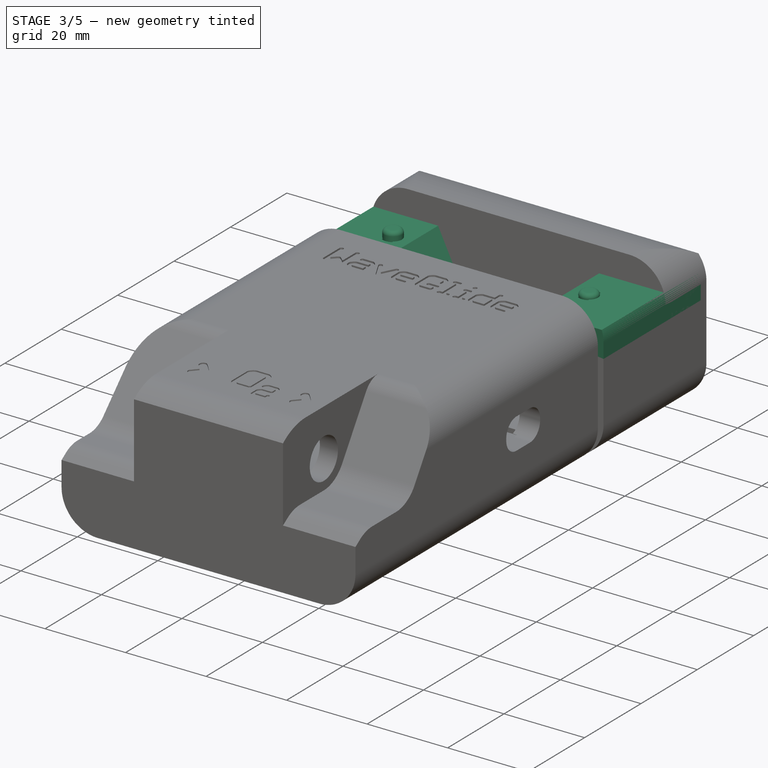
[diagram: stage 3 of 5 — iso view after this stage's code; geometry added in this stage tinted green]
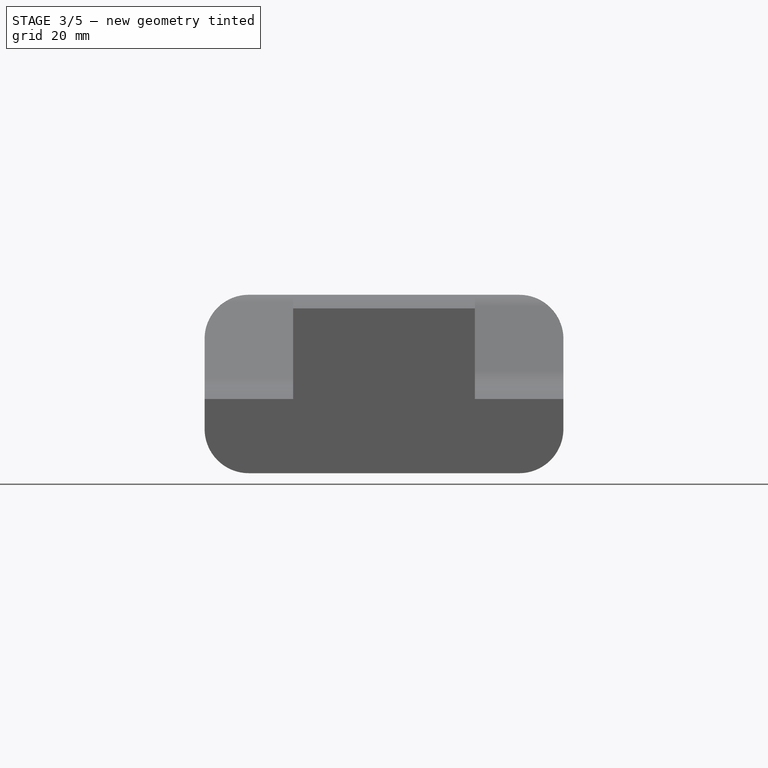
[diagram: stage 3 of 5 — front view after this stage's code; geometry added in this stage tinted green]
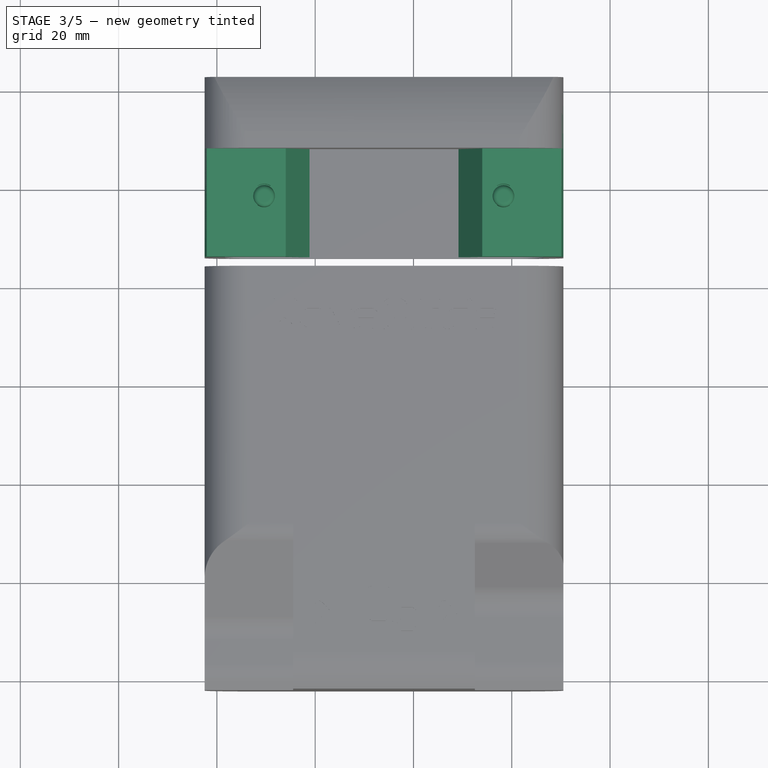
[diagram: stage 3 of 5 — top view after this stage's code; geometry added in this stage tinted green]
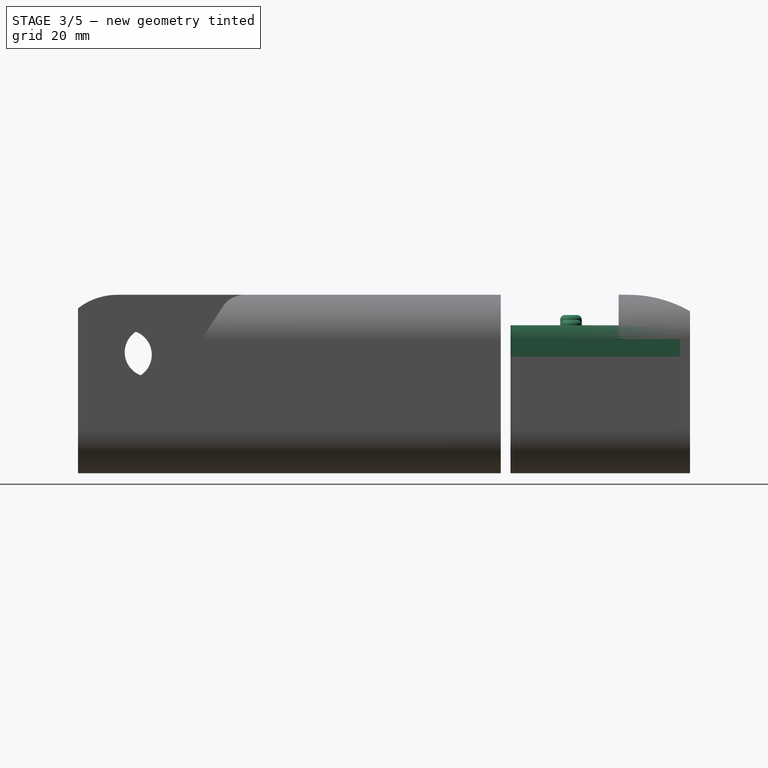
[diagram: stage 3 of 5 — right view after this stage's code; geometry added in this stage tinted green]
FEATURE [Sketcher::SketchObject] Sketch  label="ui_cross"
  Placement = pos=(0,86,0) rot=(1,0,0;1.5708rad)
  sketch-geometry (14):
    g0: LineSegment StartX=-2.5 StartY=14.2 StartZ=0 EndX=-2.5 EndY=10.6 EndZ=0
    g1: LineSegment StartX=70.5 StartY=10.6 StartZ=0 EndX=70.5 EndY=14.2 EndZ=0
    g2: LineSegment StartX=6.5 StartY=23.2 StartZ=0 EndX=61.5 EndY=23.2 EndZ=0
    g3: ArcOfCircle CenterX=6.5 CenterY=14.2 CenterZ=0 NormalX=0 NormalY=0 NormalZ=1 Radius=9 StartAngle=1.5708 EndAngle=3.14159
    g4: ArcOfCircle CenterX=61.5 CenterY=14.2 CenterZ=0 NormalX=0 NormalY=0 NormalZ=1 Radius=9 StartAngle=0 EndAngle=1.5708
    g5: LineSegment StartX=-2.5 StartY=10.6 StartZ=0 EndX=1.6 EndY=10.6 EndZ=0
    g6: LineSegment StartX=1.6 StartY=10.6 StartZ=0 EndX=1.6 EndY=11.6 EndZ=0
    g7: LineSegment StartX=66.4 StartY=11.1 StartZ=0 EndX=66.4 EndY=10.6 EndZ=0
    g8: LineSegment StartX=66.4 StartY=10.6 StartZ=0 EndX=70.5 EndY=10.6 EndZ=0
    g9: LineSegment StartX=1.6 StartY=11.6 StartZ=0 EndX=13.6 EndY=11.6 EndZ=0
    g10: LineSegment StartX=13.6 StartY=11.6 StartZ=0 EndX=17.6 EndY=7 EndZ=0
    g11: LineSegment StartX=17.6 StartY=7 StartZ=0 EndX=50.4 EndY=7 EndZ=0
    g12: LineSegment StartX=50.4 StartY=7 StartZ=0 EndX=54.4 EndY=11.1 EndZ=0
    g13: LineSegment StartX=54.4 StartY=11.1 StartZ=0 EndX=66.4 EndY=11.1 EndZ=0
  constraints (40):
    c: Vertical(g0)
    c: Vertical(g1)
    c: Horizontal(g2)
    c: Tangent(g2,g3) = 1.5708
    c: Tangent(g0,g3) = -1.5708
    c: Tangent(g2,g4) = 1.5708
    c: Tangent(g1,g4) = -1.5708
    c: DistanceX(g0,g2) = 9
    c: DistanceX(g1,g2) = -9
    c: DistanceX(g2) = 55
    c: DistanceX(g2) = 6.5
    c: DistanceY(g2) = 23.2
    c: DistanceY(g0) = -3.6
    c: DistanceY(g1) = 3.6
    c: Coincident(g0,g5)
    c: Horizontal(g5)
    c: Coincident(g5,g6)
    c: Vertical(g6)
    c: Vertical(g7)
    c: Coincident(g7,g8)
    c: Coincident(g8,g1)
    c: Horizontal(g8)
    c: DistanceY(g7) = -0.5
    c: DistanceX(g5) = 4.1
    c: DistanceX(g8) = 4.1
    c: Coincident(g6,g9)
    c: Horizontal(g9)
    c: Coincident(g9,g10)
    c: Coincident(g10,g11)
    c: Horizontal(g11)
    c: Coincident(g11,g12)
    c: Coincident(g12,g13)
    c: Coincident(g13,g7)
    c: Horizontal(g13)
    c: DistanceX(g9) = 12
    c: DistanceX(g13) = 12
    c: DistanceY(g6) = 1
    c: DistanceY(g10) = 7
    c: DistanceX(g11,g12) = 4
    c: DistanceX(g9,g10) = 4
FEATURE [Part::Extrusion] Extrude051  label="button_cover"
  Base = -> Sketch
  Dir = (0,34.5,0)
  Solid = true
FEATURE [Sketcher::SketchObject] Sketch071  label="screen_cutout"
  Placement = pos=(0,86,0) rot=(1,0,0;1.5708rad)
  sketch-geometry (10):
    g0: LineSegment StartX=14 StartY=17 StartZ=0 EndX=-5.5 EndY=17 EndZ=0
    g1: LineSegment StartX=19 StartY=6.7 StartZ=0 EndX=19 EndY=6.6 EndZ=0
    g2: LineSegment StartX=19 StartY=6.6 StartZ=0 EndX=49 EndY=6.6 EndZ=0
    g3: LineSegment StartX=49 StartY=6.6 StartZ=0 EndX=49 EndY=6.7 EndZ=0
    g4: LineSegment StartX=14 StartY=17 StartZ=0 EndX=19 EndY=6.7 EndZ=0
    g5: LineSegment StartX=49 StartY=6.7 StartZ=0 EndX=54 EndY=17 EndZ=0
    g6: LineSegment StartX=54 StartY=17 StartZ=0 EndX=73.5 EndY=17 EndZ=0
    g7: LineSegment StartX=73.5 StartY=17 StartZ=0 EndX=73.5 EndY=25.6 EndZ=0
    g8: LineSegment StartX=73.5 StartY=25.6 StartZ=0 EndX=-5.5 EndY=25.6 EndZ=0
    g9: LineSegment StartX=-5.5 StartY=25.6 StartZ=0 EndX=-5.5 EndY=17 EndZ=0
  constraints (30):
    c: Coincident(g1,g2)
    c: Horizontal(g2)
    c: Coincident(g2,g3)
    c: DistanceX(g1) = 19
    c: DistanceX(g2) = 49
    c: DistanceY(g1) = 6.6
    c: Vertical(g3)
    c: Vertical(g1)
    c: DistanceY(g1) = -0.1
    c: DistanceY(g3) = 0.1
    c: Horizontal(g0)
    c: DistanceY(g4) = 17
    c: Coincident(g4,g1)
    c: Coincident(g5,g3)
    c: Horizontal(g6)
    c: Coincident(g6,g7)
    c: Vertical(g7)
    c: Coincident(g7,g8)
    c: Horizontal(g8)
    c: Coincident(g8,g9)
    c: Coincident(g9,g0)
    c: Vertical(g9)
    c: DistanceY(g8) = 25.6
    c: DistanceX(g0) = -5.5
    c: Coincident(g0,g4)
    c: DistanceX(g8) = -79
    c: Coincident(g5,g6)
    c: DistanceY(g5,g0) = 0
    c: DistanceX(g0,g1) = 5
    c: DistanceX(g3,g5) = 5
FEATURE [Part::Extrusion] Extrude052  label="screen_cutout_shp"
  Base = -> Sketch071
  Dir = (0,34.5,0)
  Solid = true
FEATURE [Part::Cut] Cut  label="screen_frame"
  Base = -> Extrude051
  Tool = -> Extrude052
FEATURE [Sketcher::SketchObject] Sketch074  label="blocky"
  Placement = pos=(0,110,0) rot=(1,0,0;1.5708rad)
  sketch-geometry (4):
    g0: LineSegment StartX=13.6 StartY=12.2 StartZ=0 EndX=17.6 EndY=7.2 EndZ=0
    g1: LineSegment StartX=17.6 StartY=7.2 StartZ=0 EndX=50.4 EndY=7.2 EndZ=0
    g2: LineSegment StartX=50.4 StartY=7.2 StartZ=0 EndX=54.4 EndY=12.2 EndZ=0
    g3: LineSegment StartX=54.4 StartY=12.2 StartZ=0 EndX=13.6 EndY=12.2 EndZ=0
  constraints (12):
    c: Coincident(g0,g1)
    c: Horizontal(g1)
    c: Coincident(g1,g2)
    c: Coincident(g2,g3)
    c: Horizontal(g3)
    c: DistanceX(g1,g2) = 4
    c: DistanceX(g0,g0) = 4
    c: DistanceX(g0) = 17.6
    c: DistanceY(g0) = 7.2
    c: DistanceY(g0,g0) = 5
    c: DistanceX(g1) = 32.8
    c: Coincident(g3,g0)
FEATURE [Part::Extrusion] Extrude054  label="blocky_shp"
  Base = -> Sketch074
  Dir = (0,10.5,0)
  Solid = true
FEATURE [Part::Cylinder] Cylinder019  label="onoff_button_c"
  Angle = 360
  Height = 9
  Placement = pos=(9.6,98.3,10.1) rot=(0,0,1;0rad)
  Radius = 2.2
FEATURE [Part::Cylinder] Cylinder020  label="control_button_c"
  Angle = 360
  Height = 8.5
  Placement = pos=(58.3,98.3,9.6) rot=(0,0,1;0rad)
  Radius = 2.2
FEATURE [Part::Cylinder] Cylinder021  label="onoff_button_b"
  Angle = 360
  Height = 1
  Placement = pos=(9.6,98.3,10.1) rot=(0,0,1;0rad)
  Radius = 3
FEATURE [Part::Cylinder] Cylinder022  label="control_button_b"
  Angle = 360
  Height = 1
  Placement = pos=(58.3,98.3,9.6) rot=(0,0,1;0rad)
  Radius = 3
FEATURE [Part::MultiFuse] Fusion032  label="onoff_button_u"
  Shapes = -> [Cylinder021,Cylinder019]
FEATURE [Part::MultiFuse] Fusion033  label="control_button_u"
  Shapes = -> [Cylinder022,Cylinder020]
FEATURE [Part::Fillet] Fillet  label="onoff_button"
  Base = -> Fusion032
  Edges = 1 edges r=1: [Edge7]
FEATURE [Part::Fillet] Fillet001  label="control_button"
  Base = -> Fusion033
  Edges = 1 edges r=1: [Edge7]
FEATURE [Part::Box] Box019  label="onoff_cutout_rec"
  Height = 15
  Length = 2.6
  Placement = pos=(8.3,93,9) rot=(0,0,1;0rad)
  Width = 10.6
FEATURE [Part::MultiFuse] Fusion029  label="button_cutouts"
  Shapes = -> [Box019]
FEATURE [Part::Cut] Cut021  label="ui_shape_1"
  Base = -> Cut
  Tool = -> Fusion029
FEATURE [Sketcher::SketchObject] Sketch081  label="ui_cross002"
  Placement = pos=(0,86,0) rot=(1,0,0;1.5708rad)
  sketch-geometry (14):
    g0: LineSegment StartX=-2.5 StartY=14.2 StartZ=0 EndX=-2.5 EndY=10.6 EndZ=0
    g1: LineSegment StartX=70.5 StartY=10.6 StartZ=0 EndX=70.5 EndY=14.2 EndZ=0
    g2: LineSegment StartX=6.5 StartY=23.2 StartZ=0 EndX=61.5 EndY=23.2 EndZ=0
    g3: ArcOfCircle CenterX=6.5 CenterY=14.2 CenterZ=0 NormalX=0 NormalY=0 NormalZ=1 Radius=9 StartAngle=1.5708 EndAngle=3.14159
    g4: ArcOfCircle CenterX=61.5 CenterY=14.2 CenterZ=0 NormalX=0 NormalY=0 NormalZ=1 Radius=9 StartAngle=0 EndAngle=1.5708
    g5: LineSegment StartX=-2.5 StartY=10.6 StartZ=0 EndX=1.6 EndY=10.6 EndZ=0
    g6: LineSegment StartX=1.6 StartY=10.6 StartZ=0 EndX=1.6 EndY=11.6 EndZ=0
    g7: LineSegment StartX=66.4 StartY=11.1 StartZ=0 EndX=66.4 EndY=10.6 EndZ=0
    g8: LineSegment StartX=66.4 StartY=10.6 StartZ=0 EndX=70.5 EndY=10.6 EndZ=0
    g9: LineSegment StartX=1.6 StartY=11.6 StartZ=0 EndX=13.6 EndY=11.6 EndZ=0
    g10: LineSegment StartX=13.6 StartY=11.6 StartZ=0 EndX=17.6 EndY=7 EndZ=0
    g11: LineSegment StartX=17.6 StartY=7 StartZ=0 EndX=50.4 EndY=7 EndZ=0
    g12: LineSegment StartX=50.4 StartY=7 StartZ=0 EndX=54.4 EndY=11.1 EndZ=0
    g13: LineSegment StartX=54.4 StartY=11.1 StartZ=0 EndX=66.4 EndY=11.1 EndZ=0
  constraints (40):
    c: Vertical(g0)
    c: Vertical(g1)
    c: Horizontal(g2)
    c: Tangent(g2,g3) = 1.5708
    c: Tangent(g0,g3) = -1.5708
    c: Tangent(g2,g4) = 1.5708
    c: Tangent(g1,g4) = -1.5708
    c: DistanceX(g0,g2) = 9
    c: DistanceX(g1,g2) = -9
    c: DistanceX(g2) = 55
    c: DistanceX(g2) = 6.5
    c: DistanceY(g2) = 23.2
    c: DistanceY(g0) = -3.6
    c: DistanceY(g1) = 3.6
    c: Coincident(g0,g5)
    c: Horizontal(g5)
    c: Coincident(g5,g6)
    c: Vertical(g6)
    c: Vertical(g7)
    c: Coincident(g7,g8)
    c: Coincident(g8,g1)
    c: Horizontal(g8)
    c: DistanceY(g7) = -0.5
    c: DistanceX(g5) = 4.1
    c: DistanceX(g8) = 4.1
    c: Coincident(g6,g9)
    c: Horizontal(g9)
    c: Coincident(g9,g10)
    c: Coincident(g10,g11)
    c: Horizontal(g11)
    c: Coincident(g11,g12)
    c: Coincident(g12,g13)
    c: Coincident(g13,g7)
    c: Horizontal(g13)
    c: DistanceX(g9) = 12
    c: DistanceX(g13) = 12
    c: DistanceY(g6) = 1
    c: DistanceY(g10) = 7
    c: DistanceX(g11,g12) = 4
    c: DistanceX(g9,g10) = 4
FEATURE [Part::Extrusion] Extrude075  label="button_cover002"
  Base = -> Sketch081
  Dir = (0,34.5,0)
  Solid = true
FEATURE [Sketcher::SketchObject] Sketch082  label="screen_cutout002"
  Placement = pos=(0,86,0) rot=(1,0,0;1.5708rad)
  sketch-geometry (10):
    g0: LineSegment StartX=14 StartY=17 StartZ=0 EndX=-5.5 EndY=17 EndZ=0
    g1: LineSegment StartX=19 StartY=6.7 StartZ=0 EndX=19 EndY=6.6 EndZ=0
    g2: LineSegment StartX=19 StartY=6.6 StartZ=0 EndX=49 EndY=6.6 EndZ=0
    g3: LineSegment StartX=49 StartY=6.6 StartZ=0 EndX=49 EndY=6.7 EndZ=0
    g4: LineSegment StartX=14 StartY=17 StartZ=0 EndX=19 EndY=6.7 EndZ=0
    g5: LineSegment StartX=49 StartY=6.7 StartZ=0 EndX=54 EndY=17 EndZ=0
    g6: LineSegment StartX=54 StartY=17 StartZ=0 EndX=73.5 EndY=17 EndZ=0
    g7: LineSegment StartX=73.5 StartY=17 StartZ=0 EndX=73.5 EndY=25.6 EndZ=0
    g8: LineSegment StartX=73.5 StartY=25.6 StartZ=0 EndX=-5.5 EndY=25.6 EndZ=0
    g9: LineSegment StartX=-5.5 StartY=25.6 StartZ=0 EndX=-5.5 EndY=17 EndZ=0
  constraints (30):
    c: Coincident(g1,g2)
    c: Horizontal(g2)
    c: Coincident(g2,g3)
    c: DistanceX(g1) = 19
    c: DistanceX(g2) = 49
    c: DistanceY(g1) = 6.6
    c: Vertical(g3)
    c: Vertical(g1)
    c: DistanceY(g1) = -0.1
    c: DistanceY(g3) = 0.1
    c: Horizontal(g0)
    c: DistanceY(g4) = 17
    c: Coincident(g4,g1)
    c: Coincident(g5,g3)
    c: Horizontal(g6)
    c: Coincident(g6,g7)
    c: Vertical(g7)
    c: Coincident(g7,g8)
    c: Horizontal(g8)
    c: Coincident(g8,g9)
    c: Coincident(g9,g0)
    c: Vertical(g9)
    c: DistanceY(g8) = 25.6
    c: DistanceX(g0) = -5.5
    c: Coincident(g0,g4)
    c: DistanceX(g8) = -79
    c: Coincident(g5,g6)
    c: DistanceY(g5,g0) = 0
    c: DistanceX(g0,g1) = 5
    c: DistanceX(g3,g5) = 5
FEATURE [Part::Extrusion] Extrude076  label="screen_cutout_shp002"
  Base = -> Sketch082
  Dir = (0,34.5,0)
  Solid = true
FEATURE [Part::Cut] Cut031  label="screen_frame002"
  Base = -> Extrude075
  Tool = -> Extrude076
FEATURE [Part::Box] Box027  label="onoff_cutout_rec002"
  Height = 15
  Length = 2.6
  Placement = pos=(8.3,93,9) rot=(0,0,1;0rad)
  Width = 10.6
FEATURE [Part::Box] Box028  label="control_cutout_rec003"
  Height = 15
  Length = 2.6
  Placement = pos=(57,93,9) rot=(0,0,1;0rad)
  Width = 10.6
FEATURE [Part::MultiFuse] Fusion041  label="button_cutouts_rec001"
  Shapes = -> [Box027,Box028]
FEATURE [Sketcher::SketchObject] Sketch083  label="blocky002"
  Placement = pos=(0,110,0) rot=(1,0,0;1.5708rad)
  sketch-geometry (4):
    g0: LineSegment StartX=13.6 StartY=12.2 StartZ=0 EndX=17.6 EndY=7.2 EndZ=0
    g1: LineSegment StartX=17.6 StartY=7.2 StartZ=0 EndX=50.4 EndY=7.2 EndZ=0
    g2: LineSegment StartX=50.4 StartY=7.2 StartZ=0 EndX=54.4 EndY=12.2 EndZ=0
    g3: LineSegment StartX=54.4 StartY=12.2 StartZ=0 EndX=13.6 EndY=12.2 EndZ=0
  constraints (12):
    c: Coincident(g0,g1)
    c: Horizontal(g1)
    c: Coincident(g1,g2)
    c: Coincident(g2,g3)
    c: Horizontal(g3)
    c: DistanceX(g1,g2) = 4
    c: DistanceX(g0,g0) = 4
    c: DistanceX(g0) = 17.6
    c: DistanceY(g0) = 7.2
    c: DistanceY(g0,g0) = 5
    c: DistanceX(g1) = 32.8
    c: Coincident(g3,g0)
FEATURE [Part::Extrusion] Extrude077  label="blocky_shp002"
  Base = -> Sketch083
  Dir = (0,10.5,0)
  Solid = true
FEATURE [Part::MultiFuse] Fusion042  label="screen_frame_004"
  Shapes = -> [Extrude077,Cut031]
FEATURE [Part::Cut] Cut032  label="screen_frame_005"
  Base = -> Fusion042
  Tool = -> Fusion041
FEATURE [Part::Cut] Cut034  label="shell_upper_003"
  Base = -> Fusion043
  Tool = -> Extrude080
FEATURE [Part::MultiFuse] Fusion044  label="shell_upper004"
  Shapes = -> [Cut034,Cut032]
FEATURE [Part::Box] Box030  label="Cube"
  Height = 10
  Length = 48
  Placement = pos=(11,60.5,-2.6) rot=(0,0,1;0rad)
  Width = 60
FEATURE [Part::MultiFuse] Fusion046
  Shapes = -> [Cut035,Fusion044]
FEATURE [Part::Cut] Cut036  label="shell_upper_tuned"
  Base = -> Fusion046
  Tool = -> Box030
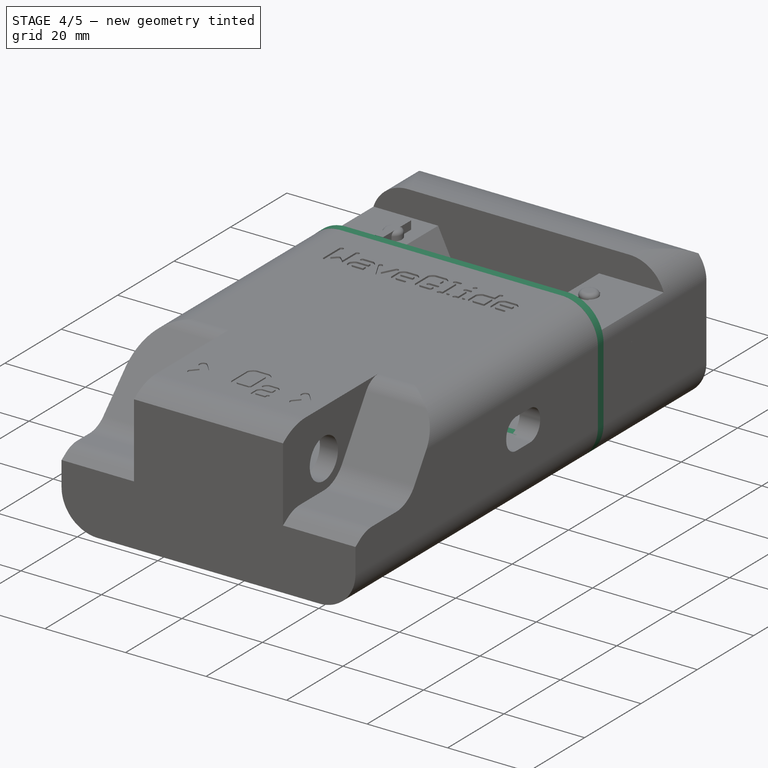
[diagram: stage 4 of 5 — iso view after this stage's code; geometry added in this stage tinted green]
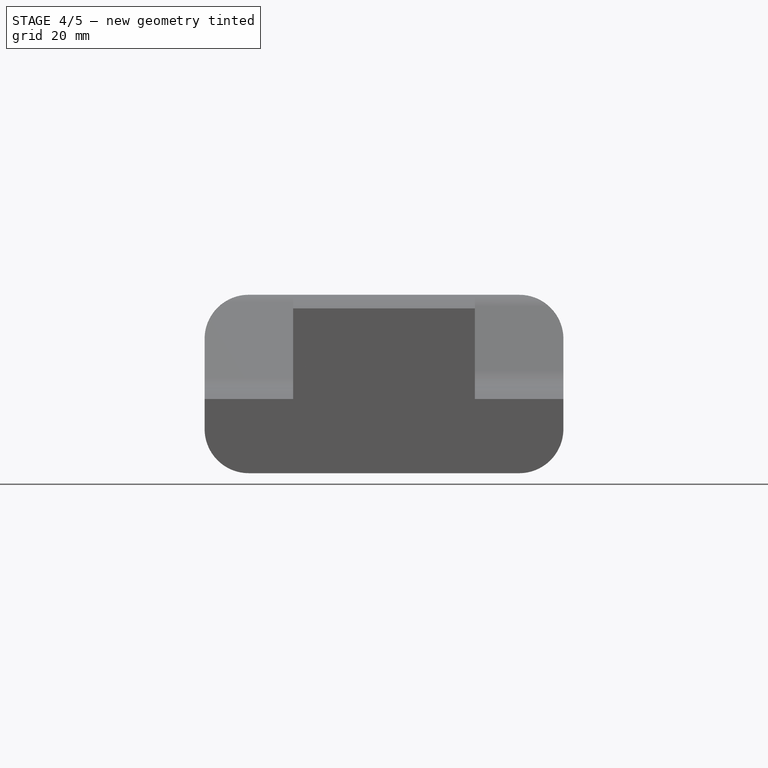
[diagram: stage 4 of 5 — front view after this stage's code; geometry added in this stage tinted green]
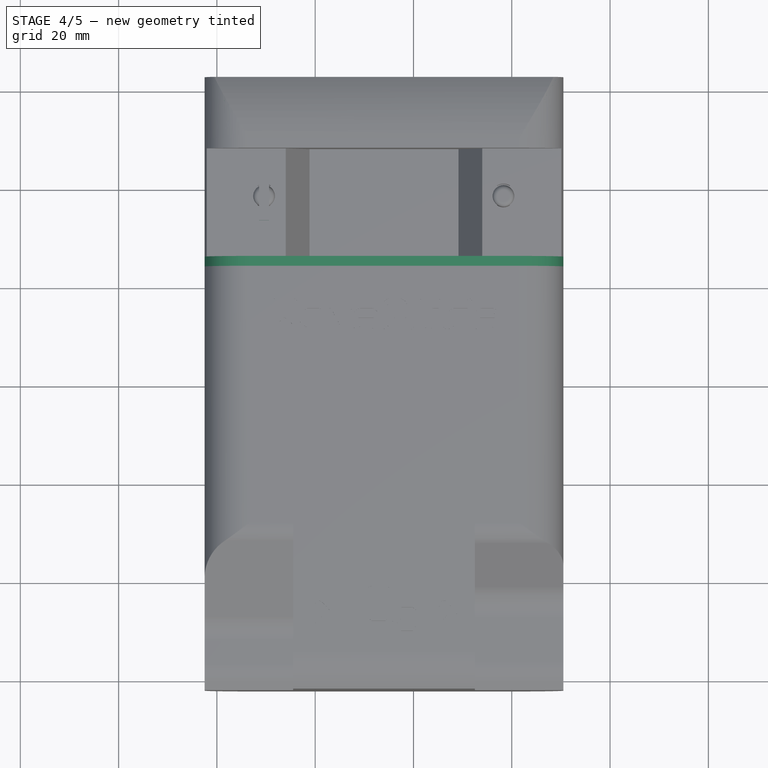
[diagram: stage 4 of 5 — top view after this stage's code; geometry added in this stage tinted green]
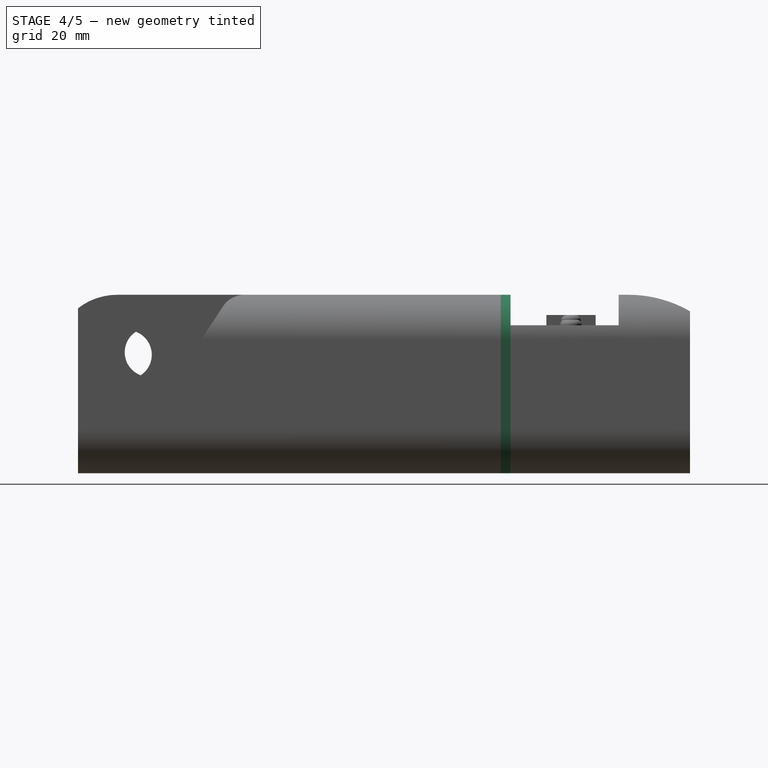
[diagram: stage 4 of 5 — right view after this stage's code; geometry added in this stage tinted green]
FEATURE [App::DocumentObjectGroup] Group003  label="ui_plate_old"
  Group = -> [Chamfer,Extrude]
FEATURE [Sketcher::SketchObject] Sketch047  label="base007"
  Placement = pos=(0,120,0) rot=(1,0,0;1.5708rad)
  sketch-geometry (32):
    g0: LineSegment StartX=1.6 StartY=1.2 StartZ=0 EndX=-1 EndY=1.2 EndZ=0
    g1: LineSegment StartX=-1 StartY=1.2 StartZ=0 EndX=-1 EndY=-0.1 EndZ=0
    g2: LineSegment StartX=-1 StartY=-0.1 StartZ=0 EndX=1.6 EndY=-0.1 EndZ=0
    g3: LineSegment StartX=1.6 StartY=-0.1 StartZ=0 EndX=1.6 EndY=-6.1 EndZ=0
    g4: LineSegment StartX=-2.5 StartY=14.2 StartZ=0 EndX=-2.5 EndY=-4.1 EndZ=0
    g5: LineSegment StartX=6.6 StartY=-11.1 StartZ=0 EndX=61.4 EndY=-11.1 EndZ=0
    g6: ArcOfCircle CenterX=6.6 CenterY=-6.1 CenterZ=0 NormalX=0 NormalY=0 NormalZ=1 Radius=5 StartAngle=3.14159 EndAngle=4.71239
    g7: LineSegment StartX=70.5 StartY=-4.1 StartZ=0 EndX=70.5 EndY=14.2 EndZ=0
    g8: LineSegment StartX=66.4 StartY=1.2 StartZ=0 EndX=69 EndY=1.2 EndZ=0
    g9: LineSegment StartX=69 StartY=1.2 StartZ=0 EndX=69 EndY=-0.1 EndZ=0
    g10: LineSegment StartX=69 StartY=-0.1 StartZ=0 EndX=66.4 EndY=-0.1 EndZ=0
    g11: LineSegment StartX=66.4 StartY=-0.1 StartZ=0 EndX=66.4 EndY=-6.1 EndZ=0
    g12: ArcOfCircle CenterX=61.4 CenterY=-6.1 CenterZ=0 NormalX=0 NormalY=0 NormalZ=1 Radius=5 StartAngle=4.71239 EndAngle=6.28319
    g13: LineSegment StartX=6.5 StartY=-13.1 StartZ=0 EndX=61.5 EndY=-13.1 EndZ=0
    g14: ArcOfCircle CenterX=6.5 CenterY=-4.1 CenterZ=0 NormalX=0 NormalY=0 NormalZ=1 Radius=9 StartAngle=3.14159 EndAngle=4.71239
    g15: ArcOfCircle CenterX=61.5 CenterY=-4.1 CenterZ=0 NormalX=0 NormalY=0 NormalZ=1 Radius=9 StartAngle=4.71239 EndAngle=6.28319
    g16: LineSegment StartX=1.6 StartY=10.6 StartZ=0 EndX=1.6 EndY=7.4 EndZ=0
    g17: LineSegment StartX=1.6 StartY=7.4 StartZ=0 EndX=3.5 EndY=7.4 EndZ=0
    g18: LineSegment StartX=3.5 StartY=7.4 StartZ=0 EndX=1.6 EndY=1.2 EndZ=0
    g19: LineSegment StartX=66.4 StartY=10.6 StartZ=0 EndX=66.4 EndY=7.4 EndZ=0
    g20: LineSegment StartX=66.4 StartY=7.4 StartZ=0 EndX=64.4 EndY=7.4 EndZ=0
    g21: LineSegment StartX=64.4 StartY=7.4 StartZ=0 EndX=64.4 EndY=5.4 EndZ=0
    g22: LineSegment StartX=64.4 StartY=5.4 StartZ=0 EndX=66.4 EndY=5.4 EndZ=0
    g23: LineSegment StartX=66.4 StartY=5.4 StartZ=0 EndX=66.4 EndY=1.2 EndZ=0
    g24: LineSegment StartX=6.5 StartY=23.2 StartZ=0 EndX=61.5 EndY=23.2 EndZ=0
    g25: ArcOfCircle CenterX=6.5 CenterY=14.2 CenterZ=0 NormalX=0 NormalY=0 NormalZ=1 Radius=9 StartAngle=1.5708 EndAngle=3.14159
    g26: ArcOfCircle CenterX=61.5 CenterY=14.2 CenterZ=0 NormalX=0 NormalY=0 NormalZ=1 Radius=9 StartAngle=0 EndAngle=1.5708
    g27: LineSegment StartX=66.4 StartY=10.6 StartZ=0 EndX=66.4 EndY=10.8 EndZ=0
    g28: LineSegment StartX=66.4 StartY=10.8 StartZ=0 EndX=64.5 EndY=10.8 EndZ=0
    g29: LineSegment StartX=1.6 StartY=10.6 StartZ=0 EndX=1.6 EndY=10.8 EndZ=0
    g30: LineSegment StartX=1.6 StartY=10.8 StartZ=0 EndX=3.5 EndY=10.8 EndZ=0
    g31: LineSegment StartX=64.5 StartY=10.8 StartZ=0 EndX=3.5 EndY=10.8 EndZ=0
  constraints (90):
    c: Coincident(g0,g1)
    c: Vertical(g1)
    c: Coincident(g1,g2)
    c: Horizontal(g2)
    c: Coincident(g2,g3)
    c: Vertical(g3)
    c: Vertical(g4)
    c: Horizontal(g0)
    c: Horizontal(g5)
    c: Tangent(g3,g6) = -1.5708
    c: Tangent(g5,g6) = -1.5708
    c: Vertical(g7)
    c: Horizontal(g8)
    c: Coincident(g8,g9)
    c: Coincident(g9,g10)
    c: Horizontal(g10)
    c: Coincident(g10,g11)
    c: Vertical(g11)
    c: Vertical(g9)
    c: Tangent(g5,g12) = -1.5708
    c: Tangent(g11,g12) = 1.5708
    c: Horizontal(g13)
    c: Tangent(g4,g14) = -1.5708
    c: Tangent(g13,g14) = -1.5708
    c: Tangent(g13,g15) = -1.5708
    c: Tangent(g7,g15) = -1.5708
    c: DistanceX(g16) = 1.6
    c: DistanceY(g16) = 10.6
    c: DistanceY(g1) = -1.3
    c: DistanceY(g16,g19) = 0
    c: DistanceY(g9) = -1.3
    c: DistanceY(g3,g2) = 6
    c: DistanceY(g11,g10) = 6
    c: DistanceY(g3,g5) = -5
    c: DistanceY(g5,g13) = -2
    c: DistanceY(g4,g2) = 4
    c: DistanceY(g7,g10) = 4
    c: Vertical(g16)
    c: Coincident(g16,g17)
    c: Coincident(g17,g18)
    c: Coincident(g18,g0)
    c: DistanceY(g16) = -3.2
    c: Horizontal(g17)
    c: DistanceY(g0,g16) = 9.4
    c: DistanceX(g16,g0) = 0
    c: Vertical(g19)
    c: Coincident(g19,g20)
    c: Horizontal(g20)
    c: DistanceX(g20) = -2
    c: DistanceY(g19) = -3.2
    c: DistanceX(g8,g19) = 0
    c: DistanceY(g8,g19) = 9.4
    c: DistanceX(g10,g8) = 0
    c: DistanceX(g2,g0) = 0
    c: Coincident(g20,g21)
    c: Coincident(g21,g22)
    c: Horizontal(g22)
    c: Coincident(g22,g23)
    c: Coincident(g23,g8)
    c: Vertical(g21)
    c: DistanceY(g21) = -2
    c: Vertical(g23)
    c: Horizontal(g24)
    c: Tangent(g24,g25) = 1.5708
    c: Tangent(g4,g25) = -1.5708
    c: Tangent(g24,g26) = 1.5708
    c: Tangent(g7,g26) = -1.5708
    c: DistanceX(g4,g24) = 9
    c: DistanceX(g7,g24) = -9
    c: Coincident(g19,g27)
    c: Vertical(g27)
    c: Coincident(g27,g28)
    c: Horizontal(g28)
    c: Coincident(g16,g29)
    c: Vertical(g29)
    c: Coincident(g29,g30)
    c: Horizontal(g30)
    c: DistanceX(g28) = -1.9
    c: DistanceY(g29) = 0.2
    c: DistanceY(g27) = 0.2
    c: DistanceX(g17) = 3.5
    c: DistanceX(g1) = -1
    c: DistanceX(g8) = 69
    c: DistanceX(g30) = 3.5
    c: DistanceX(g28) = 64.5
    c: DistanceX(g7,g28) = -6
    c: DistanceX(g4,g30) = 6
    c: Horizontal(g31)
    c: Coincident(g30,g31)
    c: Coincident(g28,g31)
FEATURE [Part::Extrusion] Extrude034
  Base = -> Sketch047
  Dir = (0,-35.5,0)
  Placement = pos=(0,1.5,0) rot=(0,0,1;0rad)
  Solid = true
FEATURE [Sketcher::SketchObject] Sketch048  label="base008"
  Placement = pos=(0,120,0) rot=(1,0,0;1.5708rad)
  sketch-geometry (8):
    g0: LineSegment StartX=-2.5 StartY=14.2 StartZ=0 EndX=-2.5 EndY=-4.1 EndZ=0
    g1: LineSegment StartX=70.5 StartY=-4.1 StartZ=0 EndX=70.5 EndY=14.2 EndZ=0
    g2: LineSegment StartX=6.5 StartY=-13.1 StartZ=0 EndX=61.5 EndY=-13.1 EndZ=0
    g3: ArcOfCircle CenterX=6.5 CenterY=-4.1 CenterZ=0 NormalX=0 NormalY=0 NormalZ=1 Radius=9 StartAngle=3.14159 EndAngle=4.71239
    g4: ArcOfCircle CenterX=61.5 CenterY=-4.1 CenterZ=0 NormalX=0 NormalY=0 NormalZ=1 Radius=9 StartAngle=4.71239 EndAngle=6.28319
    g5: LineSegment StartX=6.5 StartY=23.2 StartZ=0 EndX=61.5 EndY=23.2 EndZ=0
    g6: ArcOfCircle CenterX=6.5 CenterY=14.2 CenterZ=0 NormalX=0 NormalY=0 NormalZ=1 Radius=9 StartAngle=1.5708 EndAngle=3.14159
    g7: ArcOfCircle CenterX=61.5 CenterY=14.2 CenterZ=0 NormalX=0 NormalY=0 NormalZ=1 Radius=9 StartAngle=0 EndAngle=1.5708
  constraints (14):
    c: Vertical(g0)
    c: Vertical(g1)
    c: Horizontal(g2)
    c: Tangent(g0,g3) = -1.5708
    c: Tangent(g2,g3) = -1.5708
    c: Tangent(g2,g4) = -1.5708
    c: Tangent(g1,g4) = -1.5708
    c: Horizontal(g5)
    c: Tangent(g5,g6) = 1.5708
    c: Tangent(g0,g6) = -1.5708
    c: Tangent(g5,g7) = 1.5708
    c: Tangent(g1,g7) = -1.5708
    c: DistanceX(g0,g5) = 9
    c: DistanceX(g1,g5) = -9
FEATURE [Part::Extrusion] Extrude035
  Base = -> Sketch048
  Dir = (0,2,0)
  Placement = pos=(0,0.5,0) rot=(0,0,1;0rad)
  Solid = true
FEATURE [Part::Box] Box016  label="Cube004"
  Height = 30
  Length = 80
  Placement = pos=(-5,82,10.6) rot=(0,0,1;0rad)
  Width = 28
FEATURE [Part::Cut] Cut011
  Base = -> Extrude034
  Tool = -> Box016
FEATURE [Part::MultiFuse] Fusion020  label="shell_upper001"
  Shapes = -> [Cut011,Extrude035]
FEATURE [Sketcher::SketchObject] Sketch049
  Placement = pos=(-14,0,0) rot=(0.57735,0.57735,0.57735;2.0944rad)
  sketch-geometry (7):
    g0: LineSegment StartX=100 StartY=23.2 StartZ=0 EndX=100 EndY=26.2 EndZ=0
    g1: LineSegment StartX=100 StartY=26.2 StartZ=0 EndX=133 EndY=26.2 EndZ=0
    g2: LineSegment StartX=133 StartY=26.2 StartZ=0 EndX=133 EndY=-6.8 EndZ=0
    g3: LineSegment StartX=133 StartY=-6.8 StartZ=0 EndX=130 EndY=-6.8 EndZ=0
    g4: LineSegment StartX=130 StartY=-6.8 StartZ=0 EndX=130 EndY=3.2 EndZ=0
    g5: LineSegment StartX=100 StartY=23.2 StartZ=0 EndX=110 EndY=23.2 EndZ=0
    g6: ArcOfCircle CenterX=110 CenterY=3.2 CenterZ=0 NormalX=0 NormalY=0 NormalZ=1 Radius=20 StartAngle=0 EndAngle=1.5708
  constraints (20):
    c: Vertical(g0)
    c: Coincident(g0,g1)
    c: Horizontal(g1)
    c: Coincident(g1,g2)
    c: Vertical(g2)
    c: Coincident(g2,g3)
    c: Coincident(g3,g4)
    c: Vertical(g4)
    c: Coincident(g5,g0)
    c: Horizontal(g5)
    c: Horizontal(g3)
    c: Tangent(g5,g6) = 1.5708
    c: Tangent(g4,g6) = -1.5708
    c: DistanceY(g5) = 23.2
    c: DistanceY(g0) = 3
    c: DistanceX(g3) = -3
    c: DistanceX(g5) = 10
    c: DistanceY(g4) = 10
    c: DistanceX(g0) = 100
    c: DistanceX(g4) = 130
FEATURE [Part::Extrusion] Extrude036  label="round_cut"
  Base = -> Sketch049
  Dir = (100,0,0)
  Solid = true
FEATURE [Part::Cut] Cut012  label="shell_upper_1"
  Base = -> Fusion020
  Tool = -> Extrude036
FEATURE [Sketcher::SketchObject] Sketch073  label="base009"
  Placement = pos=(0,82,0) rot=(1,0,0;1.5708rad)
  sketch-geometry (25):
    g0: LineSegment StartX=1.6 StartY=1.2 StartZ=0 EndX=-1 EndY=1.2 EndZ=0
    g1: LineSegment StartX=-1 StartY=1.2 StartZ=0 EndX=-1 EndY=-0.1 EndZ=0
    g2: LineSegment StartX=-1 StartY=-0.1 StartZ=0 EndX=1.6 EndY=-0.1 EndZ=0
    g3: LineSegment StartX=1.6 StartY=-0.1 StartZ=0 EndX=1.6 EndY=-6.1 EndZ=0
    g4: LineSegment StartX=-2.5 StartY=14.2 StartZ=0 EndX=-2.5 EndY=-4.1 EndZ=0
    g5: LineSegment StartX=6.6 StartY=-11.1 StartZ=0 EndX=61.4 EndY=-11.1 EndZ=0
    g6: ArcOfCircle CenterX=6.6 CenterY=-6.1 CenterZ=0 NormalX=0 NormalY=0 NormalZ=1 Radius=5 StartAngle=3.14159 EndAngle=4.71239
    g7: LineSegment StartX=70.5 StartY=-4.09816 StartZ=0 EndX=70.5 EndY=14.2 EndZ=0
    g8: LineSegment StartX=66.4018 StartY=1.20184 StartZ=0 EndX=69 EndY=1.20184 EndZ=0
    g9: LineSegment StartX=69 StartY=1.20184 StartZ=0 EndX=69 EndY=-0.0981632 EndZ=0
    g10: LineSegment StartX=69 StartY=-0.0981632 StartZ=0 EndX=66.4018 EndY=-0.0981632 EndZ=0
    g11: LineSegment StartX=66.4018 StartY=-0.0981632 StartZ=0 EndX=66.4018 EndY=-6.09816 EndZ=0
    g12: ArcOfCircle CenterX=61.4 CenterY=-6.09816 CenterZ=0 NormalX=0 NormalY=0 NormalZ=1 Radius=5.00184 StartAngle=4.71239 EndAngle=6.28319
    g13: LineSegment StartX=6.5 StartY=-13.1 StartZ=0 EndX=61.4982 EndY=-13.1 EndZ=0
    g14: ArcOfCircle CenterX=6.5 CenterY=-4.1 CenterZ=0 NormalX=0 NormalY=0 NormalZ=1 Radius=9 StartAngle=3.14159 EndAngle=4.71239
    g15: ArcOfCircle CenterX=61.4982 CenterY=-4.09816 CenterZ=0 NormalX=0 NormalY=0 NormalZ=1 Radius=9.00184 StartAngle=4.71239 EndAngle=6.28319
    g16: LineSegment StartX=3.5 StartY=7.4 StartZ=0 EndX=1.6 EndY=1.2 EndZ=0
    g17: LineSegment StartX=64.4 StartY=10.4018 StartZ=0 EndX=64.4 EndY=5.40184 EndZ=0
    g18: LineSegment StartX=64.4 StartY=5.40184 StartZ=0 EndX=66.4018 EndY=5.40184 EndZ=0
    g19: LineSegment StartX=66.4018 StartY=5.40184 StartZ=0 EndX=66.4018 EndY=1.20184 EndZ=0
    g20: LineSegment StartX=6.5 StartY=23.2 StartZ=0 EndX=61.5 EndY=23.2 EndZ=0
    g21: ArcOfCircle CenterX=6.5 CenterY=14.2 CenterZ=0 NormalX=0 NormalY=0 NormalZ=1 Radius=9 StartAngle=1.5708 EndAngle=3.14159
    g22: ArcOfCircle CenterX=61.5 CenterY=14.2 CenterZ=0 NormalX=0 NormalY=0 NormalZ=1 Radius=9 StartAngle=0 EndAngle=1.5708
    g23: LineSegment StartX=3.5 StartY=7.4 StartZ=0 EndX=3.5 EndY=10.4018 EndZ=0
    g24: LineSegment StartX=3.5 StartY=10.4018 StartZ=0 EndX=64.4 EndY=10.4018 EndZ=0
  constraints (60):
    c: Coincident(g0,g1)
    c: Vertical(g1)
    c: Coincident(g1,g2)
    c: Horizontal(g2)
    c: Coincident(g2,g3)
    c: Vertical(g3)
    c: Vertical(g4)
    c: Horizontal(g0)
    c: Horizontal(g5)
    c: Tangent(g3,g6) = -1.5708
    c: Tangent(g5,g6) = -1.5708
    c: Vertical(g7)
    c: Horizontal(g8)
    c: Coincident(g8,g9)
    c: Coincident(g9,g10)
    c: Horizontal(g10)
    c: Coincident(g10,g11)
    c: Vertical(g11)
    c: Vertical(g9)
    c: Tangent(g5,g12) = -1.5708
    c: Tangent(g11,g12) = 1.5708
    c: Horizontal(g13)
    c: Tangent(g4,g14) = -1.5708
    c: Tangent(g13,g14) = -1.5708
    c: Tangent(g13,g15) = -1.5708
    c: Tangent(g7,g15) = -1.5708
    c: DistanceY(g1) = -1.3
    c: DistanceY(g9) = -1.3
    c: DistanceY(g3,g2) = 6
    c: DistanceY(g11,g10) = 6
    c: DistanceY(g3,g5) = -5
    c: DistanceY(g5,g13) = -2
    c: DistanceY(g4,g2) = 4
    c: DistanceY(g7,g10) = 4
    c: Coincident(g16,g0)
    c: DistanceX(g10,g8) = 0
    c: DistanceX(g2,g0) = 0
    c: Coincident(g17,g18)
    c: Horizontal(g18)
    c: Coincident(g18,g19)
    c: Coincident(g19,g8)
    c: Vertical(g17)
    c: DistanceY(g17) = -5
    c: Vertical(g19)
    c: Horizontal(g20)
    c: Tangent(g20,g21) = 1.5708
    c: Tangent(g4,g21) = -1.5708
    c: Tangent(g20,g22) = 1.5708
    c: Tangent(g7,g22) = -1.5708
    c: DistanceX(g4,g20) = 9
    c: DistanceX(g7,g20) = -9
    c: DistanceX(g16) = 3.5
    c: DistanceX(g1) = -1
    c: DistanceX(g8) = 69
    c: DistanceY(g19) = -4.2
    c: Vertical(g23)
    c: Coincident(g23,g24)
    c: Horizontal(g24)
    c: Coincident(g17,g24)
    c: Coincident(g16,g23)
FEATURE [Part::Extrusion] Extrude053  label="shell_ring_old"
  Base = -> Sketch073
  Dir = (0,2,0)
  Placement = pos=(0,2,0) rot=(0,0,1;0rad)
  Solid = true
FEATURE [Part::MultiFuse] Fusion030  label="ui_shape"
  Shapes = -> [Cut021,Extrude054]
FEATURE [Sketcher::SketchObject] Sketch075  label="ui_cross001"
  Placement = pos=(0,86,0) rot=(1,0,0;1.5708rad)
  sketch-geometry (14):
    g0: LineSegment StartX=-2.5 StartY=14.2 StartZ=0 EndX=-2.5 EndY=10.6 EndZ=0
    g1: LineSegment StartX=70.5 StartY=10.6 StartZ=0 EndX=70.5 EndY=14.2 EndZ=0
    g2: LineSegment StartX=6.5 StartY=23.2 StartZ=0 EndX=61.5 EndY=23.2 EndZ=0
    g3: ArcOfCircle CenterX=6.5 CenterY=14.2 CenterZ=0 NormalX=0 NormalY=0 NormalZ=1 Radius=9 StartAngle=1.5708 EndAngle=3.14159
    g4: ArcOfCircle CenterX=61.5 CenterY=14.2 CenterZ=0 NormalX=0 NormalY=0 NormalZ=1 Radius=9 StartAngle=0 EndAngle=1.5708
    g5: LineSegment StartX=-2.5 StartY=10.6 StartZ=0 EndX=1.6 EndY=10.6 EndZ=0
    g6: LineSegment StartX=1.6 StartY=10.6 StartZ=0 EndX=1.6 EndY=11.6 EndZ=0
    g7: LineSegment StartX=66.4 StartY=11.1 StartZ=0 EndX=66.4 EndY=10.6 EndZ=0
    g8: LineSegment StartX=66.4 StartY=10.6 StartZ=0 EndX=70.5 EndY=10.6 EndZ=0
    g9: LineSegment StartX=1.6 StartY=11.6 StartZ=0 EndX=13.6 EndY=11.6 EndZ=0
    g10: LineSegment StartX=13.6 StartY=11.6 StartZ=0 EndX=17.6 EndY=7 EndZ=0
    g11: LineSegment StartX=17.6 StartY=7 StartZ=0 EndX=50.4 EndY=7 EndZ=0
    g12: LineSegment StartX=50.4 StartY=7 StartZ=0 EndX=54.4 EndY=11.1 EndZ=0
    g13: LineSegment StartX=54.4 StartY=11.1 StartZ=0 EndX=66.4 EndY=11.1 EndZ=0
  constraints (40):
    c: Vertical(g0)
    c: Vertical(g1)
    c: Horizontal(g2)
    c: Tangent(g2,g3) = 1.5708
    c: Tangent(g0,g3) = -1.5708
    c: Tangent(g2,g4) = 1.5708
    c: Tangent(g1,g4) = -1.5708
    c: DistanceX(g0,g2) = 9
    c: DistanceX(g1,g2) = -9
    c: DistanceX(g2) = 55
    c: DistanceX(g2) = 6.5
    c: DistanceY(g2) = 23.2
    c: DistanceY(g0) = -3.6
    c: DistanceY(g1) = 3.6
    c: Coincident(g0,g5)
    c: Horizontal(g5)
    c: Coincident(g5,g6)
    c: Vertical(g6)
    c: Vertical(g7)
    c: Coincident(g7,g8)
    c: Coincident(g8,g1)
    c: Horizontal(g8)
    c: DistanceY(g7) = -0.5
    c: DistanceX(g5) = 4.1
    c: DistanceX(g8) = 4.1
    c: Coincident(g6,g9)
    c: Horizontal(g9)
    c: Coincident(g9,g10)
    c: Coincident(g10,g11)
    c: Horizontal(g11)
    c: Coincident(g11,g12)
    c: Coincident(g12,g13)
    c: Coincident(g13,g7)
    c: Horizontal(g13)
    c: DistanceX(g9) = 12
    c: DistanceX(g13) = 12
    c: DistanceY(g6) = 1
    c: DistanceY(g10) = 7
    c: DistanceX(g11,g12) = 4
    c: DistanceX(g9,g10) = 4
FEATURE [Part::Extrusion] Extrude055  label="button_cover001"
  Base = -> Sketch075
  Dir = (0,34.5,0)
  Solid = true
FEATURE [Sketcher::SketchObject] Sketch076  label="screen_cutout001"
  Placement = pos=(0,86,0) rot=(1,0,0;1.5708rad)
  sketch-geometry (10):
    g0: LineSegment StartX=14 StartY=17 StartZ=0 EndX=-5.5 EndY=17 EndZ=0
    g1: LineSegment StartX=19 StartY=6.7 StartZ=0 EndX=19 EndY=6.6 EndZ=0
    g2: LineSegment StartX=19 StartY=6.6 StartZ=0 EndX=49 EndY=6.6 EndZ=0
    g3: LineSegment StartX=49 StartY=6.6 StartZ=0 EndX=49 EndY=6.7 EndZ=0
    g4: LineSegment StartX=14 StartY=17 StartZ=0 EndX=19 EndY=6.7 EndZ=0
    g5: LineSegment StartX=49 StartY=6.7 StartZ=0 EndX=54 EndY=17 EndZ=0
    g6: LineSegment StartX=54 StartY=17 StartZ=0 EndX=73.5 EndY=17 EndZ=0
    g7: LineSegment StartX=73.5 StartY=17 StartZ=0 EndX=73.5 EndY=25.6 EndZ=0
    g8: LineSegment StartX=73.5 StartY=25.6 StartZ=0 EndX=-5.5 EndY=25.6 EndZ=0
    g9: LineSegment StartX=-5.5 StartY=25.6 StartZ=0 EndX=-5.5 EndY=17 EndZ=0
  constraints (30):
    c: Coincident(g1,g2)
    c: Horizontal(g2)
    c: Coincident(g2,g3)
    c: DistanceX(g1) = 19
    c: DistanceX(g2) = 49
    c: DistanceY(g1) = 6.6
    c: Vertical(g3)
    c: Vertical(g1)
    c: DistanceY(g1) = -0.1
    c: DistanceY(g3) = 0.1
    c: Horizontal(g0)
    c: DistanceY(g4) = 17
    c: Coincident(g4,g1)
    c: Coincident(g5,g3)
    c: Horizontal(g6)
    c: Coincident(g6,g7)
    c: Vertical(g7)
    c: Coincident(g7,g8)
    c: Horizontal(g8)
    c: Coincident(g8,g9)
    c: Coincident(g9,g0)
    c: Vertical(g9)
    c: DistanceY(g8) = 25.6
    c: DistanceX(g0) = -5.5
    c: Coincident(g0,g4)
    c: DistanceX(g8) = -79
    c: Coincident(g5,g6)
    c: DistanceY(g5,g0) = 0
    c: DistanceX(g0,g1) = 5
    c: DistanceX(g3,g5) = 5
FEATURE [Part::Extrusion] Extrude056  label="screen_cutout_shp001"
  Base = -> Sketch076
  Dir = (0,34.5,0)
  Solid = true
FEATURE [Part::Cut] Cut022  label="screen_frame001"
  Base = -> Extrude055
  Tool = -> Extrude056
FEATURE [Part::Box] Box020  label="onoff_cutout_rec001"
  Height = 15
  Length = 2.6
  Placement = pos=(8.3,93,9) rot=(0,0,1;0rad)
  Width = 10.6
FEATURE [Part::Box] Box021  label="control_cutout_rec002"
  Height = 15
  Length = 2.6
  Placement = pos=(57,93,9) rot=(0,0,1;0rad)
  Width = 10.6
FEATURE [Part::MultiFuse] Fusion034  label="button_cutouts_rec"
  Shapes = -> [Box020,Box021]
FEATURE [Sketcher::SketchObject] Sketch077  label="blocky001"
  Placement = pos=(0,110,0) rot=(1,0,0;1.5708rad)
  sketch-geometry (4):
    g0: LineSegment StartX=13.6 StartY=12.2 StartZ=0 EndX=17.6 EndY=7.2 EndZ=0
    g1: LineSegment StartX=17.6 StartY=7.2 StartZ=0 EndX=50.4 EndY=7.2 EndZ=0
    g2: LineSegment StartX=50.4 StartY=7.2 StartZ=0 EndX=54.4 EndY=12.2 EndZ=0
    g3: LineSegment StartX=54.4 StartY=12.2 StartZ=0 EndX=13.6 EndY=12.2 EndZ=0
  constraints (12):
    c: Coincident(g0,g1)
    c: Horizontal(g1)
    c: Coincident(g1,g2)
    c: Coincident(g2,g3)
    c: Horizontal(g3)
    c: DistanceX(g1,g2) = 4
    c: DistanceX(g0,g0) = 4
    c: DistanceX(g0) = 17.6
    c: DistanceY(g0) = 7.2
    c: DistanceY(g0,g0) = 5
    c: DistanceX(g1) = 32.8
    c: Coincident(g3,g0)
FEATURE [Part::Extrusion] Extrude057  label="blocky_shp001"
  Base = -> Sketch077
  Dir = (0,10.5,0)
  Solid = true
FEATURE [Part::MultiFuse] Fusion035  label="screen_frame_2"
  Shapes = -> [Extrude057,Cut022]
FEATURE [Part::Cut] Cut023  label="screen_frame_3"
  Base = -> Fusion035
  Tool = -> Fusion034
FEATURE [Part::Box] Box022  label="onoff_button_rec_c"
  Height = 9
  Length = 2
  Placement = pos=(8.6,93.3,10.1) rot=(0,0,1;0rad)
  Width = 10
FEATURE [Part::Box] Box024  label="onoff_button_rec_b"
  Height = 1
  Length = 6
  Placement = pos=(6.6,91.3,10.1) rot=(0,0,1;0rad)
  Width = 14
FEATURE [Part::MultiFuse] Fusion037  label="onoff_button_rec"
  Shapes = -> [Box024,Box022]
FEATURE [Sketcher::SketchObject] Sketch078  label="base010"
  Placement = pos=(0,120,0) rot=(1,0,0;1.5708rad)
  sketch-geometry (32):
    g0: LineSegment StartX=1.6 StartY=1.2 StartZ=0 EndX=-1 EndY=1.2 EndZ=0
    g1: LineSegment StartX=-1 StartY=1.2 StartZ=0 EndX=-1 EndY=-0.1 EndZ=0
    g2: LineSegment StartX=-1 StartY=-0.1 StartZ=0 EndX=1.6 EndY=-0.1 EndZ=0
    g3: LineSegment StartX=1.6 StartY=-0.1 StartZ=0 EndX=1.6 EndY=-6.1 EndZ=0
    g4: LineSegment StartX=-2.5 StartY=14.2 StartZ=0 EndX=-2.5 EndY=-4.1 EndZ=0
    g5: LineSegment StartX=6.6 StartY=-11.1 StartZ=0 EndX=61.4 EndY=-11.1 EndZ=0
    g6: ArcOfCircle CenterX=6.6 CenterY=-6.1 CenterZ=0 NormalX=0 NormalY=0 NormalZ=1 Radius=5 StartAngle=3.14159 EndAngle=4.71239
    g7: LineSegment StartX=70.5 StartY=-4.1 StartZ=0 EndX=70.5 EndY=14.2 EndZ=0
    g8: LineSegment StartX=66.4 StartY=1.2 StartZ=0 EndX=69 EndY=1.2 EndZ=0
    g9: LineSegment StartX=69 StartY=1.2 StartZ=0 EndX=69 EndY=-0.1 EndZ=0
    g10: LineSegment StartX=69 StartY=-0.1 StartZ=0 EndX=66.4 EndY=-0.1 EndZ=0
    g11: LineSegment StartX=66.4 StartY=-0.1 StartZ=0 EndX=66.4 EndY=-6.1 EndZ=0
    g12: ArcOfCircle CenterX=61.4 CenterY=-6.1 CenterZ=0 NormalX=0 NormalY=0 NormalZ=1 Radius=5 StartAngle=4.71239 EndAngle=6.28319
    g13: LineSegment StartX=6.5 StartY=-13.1 StartZ=0 EndX=61.5 EndY=-13.1 EndZ=0
    g14: ArcOfCircle CenterX=6.5 CenterY=-4.1 CenterZ=0 NormalX=0 NormalY=0 NormalZ=1 Radius=9 StartAngle=3.14159 EndAngle=4.71239
    g15: ArcOfCircle CenterX=61.5 CenterY=-4.1 CenterZ=0 NormalX=0 NormalY=0 NormalZ=1 Radius=9 StartAngle=4.71239 EndAngle=6.28319
    g16: LineSegment StartX=1.6 StartY=10.6 StartZ=0 EndX=1.6 EndY=7.4 EndZ=0
    g17: LineSegment StartX=1.6 StartY=7.4 StartZ=0 EndX=3.5 EndY=7.4 EndZ=0
    g18: LineSegment StartX=3.5 StartY=7.4 StartZ=0 EndX=1.6 EndY=1.2 EndZ=0
    g19: LineSegment StartX=66.4 StartY=10.6 StartZ=0 EndX=66.4 EndY=7.4 EndZ=0
    g20: LineSegment StartX=66.4 StartY=7.4 StartZ=0 EndX=64.4 EndY=7.4 EndZ=0
    g21: LineSegment StartX=64.4 StartY=7.4 StartZ=0 EndX=64.4 EndY=5.4 EndZ=0
    g22: LineSegment StartX=64.4 StartY=5.4 StartZ=0 EndX=66.4 EndY=5.4 EndZ=0
    g23: LineSegment StartX=66.4 StartY=5.4 StartZ=0 EndX=66.4 EndY=1.2 EndZ=0
    g24: LineSegment StartX=6.5 StartY=23.2 StartZ=0 EndX=61.5 EndY=23.2 EndZ=0
    g25: ArcOfCircle CenterX=6.5 CenterY=14.2 CenterZ=0 NormalX=0 NormalY=0 NormalZ=1 Radius=9 StartAngle=1.5708 EndAngle=3.14159
    g26: ArcOfCircle CenterX=61.5 CenterY=14.2 CenterZ=0 NormalX=0 NormalY=0 NormalZ=1 Radius=9 StartAngle=0 EndAngle=1.5708
    g27: LineSegment StartX=66.4 StartY=10.6 StartZ=0 EndX=66.4 EndY=10.8 EndZ=0
    g28: LineSegment StartX=66.4 StartY=10.8 StartZ=0 EndX=64.5 EndY=10.8 EndZ=0
    g29: LineSegment StartX=1.6 StartY=10.6 StartZ=0 EndX=1.6 EndY=10.8 EndZ=0
    g30: LineSegment StartX=1.6 StartY=10.8 StartZ=0 EndX=3.5 EndY=10.8 EndZ=0
    g31: LineSegment StartX=64.5 StartY=10.8 StartZ=0 EndX=3.5 EndY=10.8 EndZ=0
  constraints (90):
    c: Coincident(g0,g1)
    c: Vertical(g1)
    c: Coincident(g1,g2)
    c: Horizontal(g2)
    c: Coincident(g2,g3)
    c: Vertical(g3)
    c: Vertical(g4)
    c: Horizontal(g0)
    c: Horizontal(g5)
    c: Tangent(g3,g6) = -1.5708
    c: Tangent(g5,g6) = -1.5708
    c: Vertical(g7)
    c: Horizontal(g8)
    c: Coincident(g8,g9)
    c: Coincident(g9,g10)
    c: Horizontal(g10)
    c: Coincident(g10,g11)
    c: Vertical(g11)
    c: Vertical(g9)
    c: Tangent(g5,g12) = -1.5708
    c: Tangent(g11,g12) = 1.5708
    c: Horizontal(g13)
    c: Tangent(g4,g14) = -1.5708
    c: Tangent(g13,g14) = -1.5708
    c: Tangent(g13,g15) = -1.5708
    c: Tangent(g7,g15) = -1.5708
    c: DistanceX(g16) = 1.6
    c: DistanceY(g16) = 10.6
    c: DistanceY(g1) = -1.3
    c: DistanceY(g16,g19) = 0
    c: DistanceY(g9) = -1.3
    c: DistanceY(g3,g2) = 6
    c: DistanceY(g11,g10) = 6
    c: DistanceY(g3,g5) = -5
    c: DistanceY(g5,g13) = -2
    c: DistanceY(g4,g2) = 4
    c: DistanceY(g7,g10) = 4
    c: Vertical(g16)
    c: Coincident(g16,g17)
    c: Coincident(g17,g18)
    c: Coincident(g18,g0)
    c: DistanceY(g16) = -3.2
    c: Horizontal(g17)
    c: DistanceY(g0,g16) = 9.4
    c: DistanceX(g16,g0) = 0
    c: Vertical(g19)
    c: Coincident(g19,g20)
    c: Horizontal(g20)
    c: DistanceX(g20) = -2
    c: DistanceY(g19) = -3.2
    c: DistanceX(g8,g19) = 0
    c: DistanceY(g8,g19) = 9.4
    c: DistanceX(g10,g8) = 0
    c: DistanceX(g2,g0) = 0
    c: Coincident(g20,g21)
    c: Coincident(g21,g22)
    c: Horizontal(g22)
    c: Coincident(g22,g23)
    c: Coincident(g23,g8)
    c: Vertical(g21)
    c: DistanceY(g21) = -2
    c: Vertical(g23)
    c: Horizontal(g24)
    c: Tangent(g24,g25) = 1.5708
    c: Tangent(g4,g25) = -1.5708
    c: Tangent(g24,g26) = 1.5708
    c: Tangent(g7,g26) = -1.5708
    c: DistanceX(g4,g24) = 9
    c: DistanceX(g7,g24) = -9
    c: Coincident(g19,g27)
    c: Vertical(g27)
    c: Coincident(g27,g28)
    c: Horizontal(g28)
    c: Coincident(g16,g29)
    c: Vertical(g29)
    c: Coincident(g29,g30)
    c: Horizontal(g30)
    c: DistanceX(g28) = -1.9
    c: DistanceY(g29) = 0.2
    c: DistanceY(g27) = 0.2
    c: DistanceX(g17) = 3.5
    c: DistanceX(g1) = -1
    c: DistanceX(g8) = 69
    c: DistanceX(g30) = 3.5
    c: DistanceX(g28) = 64.5
    c: DistanceX(g7,g28) = -6
    c: DistanceX(g4,g30) = 6
    c: Horizontal(g31)
    c: Coincident(g30,g31)
    c: Coincident(g28,g31)
FEATURE [Part::Extrusion] Extrude058
  Base = -> Sketch078
  Dir = (0,-35.5,0)
  Placement = pos=(0,1.5,0) rot=(0,0,1;0rad)
  Solid = true
FEATURE [Sketcher::SketchObject] Sketch079  label="base011"
  Placement = pos=(0,120,0) rot=(1,0,0;1.5708rad)
  sketch-geometry (8):
    g0: LineSegment StartX=-2.5 StartY=14.2 StartZ=0 EndX=-2.5 EndY=-4.1 EndZ=0
    g1: LineSegment StartX=70.5 StartY=-4.1 StartZ=0 EndX=70.5 EndY=14.2 EndZ=0
    g2: LineSegment StartX=6.5 StartY=-13.1 StartZ=0 EndX=61.5 EndY=-13.1 EndZ=0
    g3: ArcOfCircle CenterX=6.5 CenterY=-4.1 CenterZ=0 NormalX=0 NormalY=0 NormalZ=1 Radius=9 StartAngle=3.14159 EndAngle=4.71239
    g4: ArcOfCircle CenterX=61.5 CenterY=-4.1 CenterZ=0 NormalX=0 NormalY=0 NormalZ=1 Radius=9 StartAngle=4.71239 EndAngle=6.28319
    g5: LineSegment StartX=6.5 StartY=23.2 StartZ=0 EndX=61.5 EndY=23.2 EndZ=0
    g6: ArcOfCircle CenterX=6.5 CenterY=14.2 CenterZ=0 NormalX=0 NormalY=0 NormalZ=1 Radius=9 StartAngle=1.5708 EndAngle=3.14159
    g7: ArcOfCircle CenterX=61.5 CenterY=14.2 CenterZ=0 NormalX=0 NormalY=0 NormalZ=1 Radius=9 StartAngle=0 EndAngle=1.5708
  constraints (14):
    c: Vertical(g0)
    c: Vertical(g1)
    c: Horizontal(g2)
    c: Tangent(g0,g3) = -1.5708
    c: Tangent(g2,g3) = -1.5708
    c: Tangent(g2,g4) = -1.5708
    c: Tangent(g1,g4) = -1.5708
    c: Horizontal(g5)
    c: Tangent(g5,g6) = 1.5708
    c: Tangent(g0,g6) = -1.5708
    c: Tangent(g5,g7) = 1.5708
    c: Tangent(g1,g7) = -1.5708
    c: DistanceX(g0,g5) = 9
    c: DistanceX(g1,g5) = -9
FEATURE [Part::Extrusion] Extrude059
  Base = -> Sketch079
  Dir = (0,2,0)
  Placement = pos=(0,0.5,0) rot=(0,0,1;0rad)
  Solid = true
FEATURE [Part::Box] Box026  label="Cube007"
  Height = 30
  Length = 80
  Placement = pos=(-5,82,10.6) rot=(0,0,1;0rad)
  Width = 28
FEATURE [Part::Cut] Cut024
  Base = -> Extrude058
  Tool = -> Box026
FEATURE [Part::MultiFuse] Fusion038  label="shell_upper002"
  Shapes = -> [Cut024,Extrude059]
FEATURE [Sketcher::SketchObject] Sketch080
  Placement = pos=(-14,0,0) rot=(0.57735,0.57735,0.57735;2.0944rad)
  sketch-geometry (7):
    g0: LineSegment StartX=100 StartY=23.2 StartZ=0 EndX=100 EndY=26.2 EndZ=0
    g1: LineSegment StartX=100 StartY=26.2 StartZ=0 EndX=138 EndY=26.2 EndZ=0
    g2: LineSegment StartX=138 StartY=26.2 StartZ=0 EndX=138 EndY=-11.8 EndZ=0
    g3: LineSegment StartX=138 StartY=-11.8 StartZ=0 EndX=135 EndY=-11.8 EndZ=0
    g4: LineSegment StartX=135 StartY=-11.8 StartZ=0 EndX=135 EndY=-1.8 EndZ=0
    g5: LineSegment StartX=100 StartY=23.2 StartZ=0 EndX=110 EndY=23.2 EndZ=0
    g6: ArcOfCircle CenterX=110 CenterY=-1.8 CenterZ=0 NormalX=0 NormalY=0 NormalZ=1 Radius=25 StartAngle=0 EndAngle=1.5708
  constraints (20):
    c: Vertical(g0)
    c: Coincident(g0,g1)
    c: Horizontal(g1)
    c: Coincident(g1,g2)
    c: Vertical(g2)
    c: Coincident(g2,g3)
    c: Coincident(g3,g4)
    c: Vertical(g4)
    c: Coincident(g5,g0)
    c: Horizontal(g5)
    c: Horizontal(g3)
    c: Tangent(g5,g6) = 1.5708
    c: Tangent(g4,g6) = -1.5708
    c: DistanceY(g5) = 23.2
    c: DistanceY(g0) = 3
    c: DistanceX(g3) = -3
    c: DistanceX(g5) = 10
    c: DistanceY(g4) = 10
    c: DistanceX(g0) = 100
    c: DistanceX(g4) = 135
FEATURE [Part::Extrusion] Extrude060  label="round_cut001"
  Base = -> Sketch080
  Dir = (100,0,0)
  Solid = true
FEATURE [Part::Cut] Cut025  label="shell_upper_002"
  Base = -> Fusion038
  Tool = -> Extrude060
FEATURE [Part::MultiFuse] Fusion039  label="shell_upper"
  Shapes = -> [Cut025,Cut023]
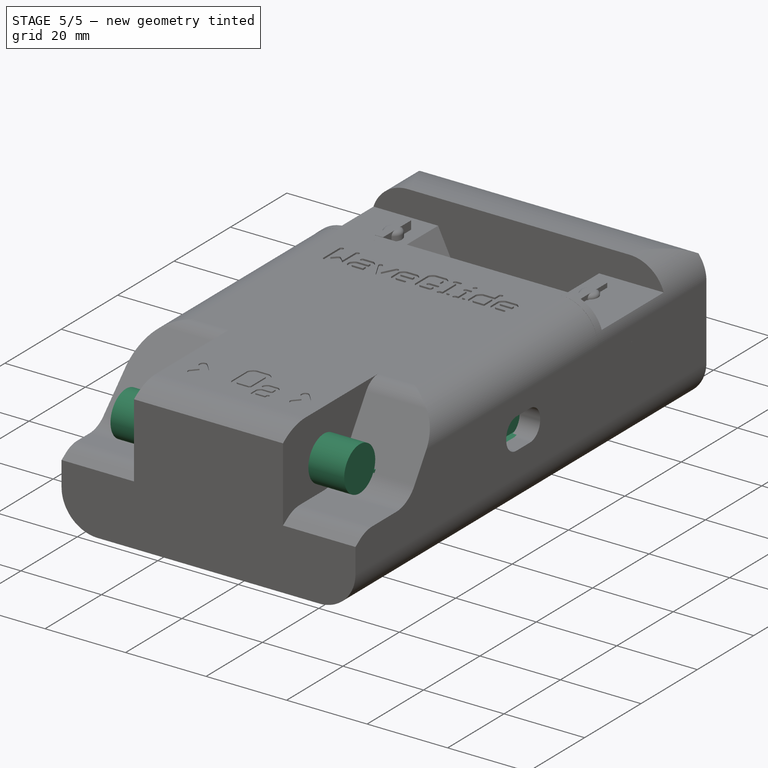
[diagram: stage 5 of 5 — iso view after this stage's code; geometry added in this stage tinted green]
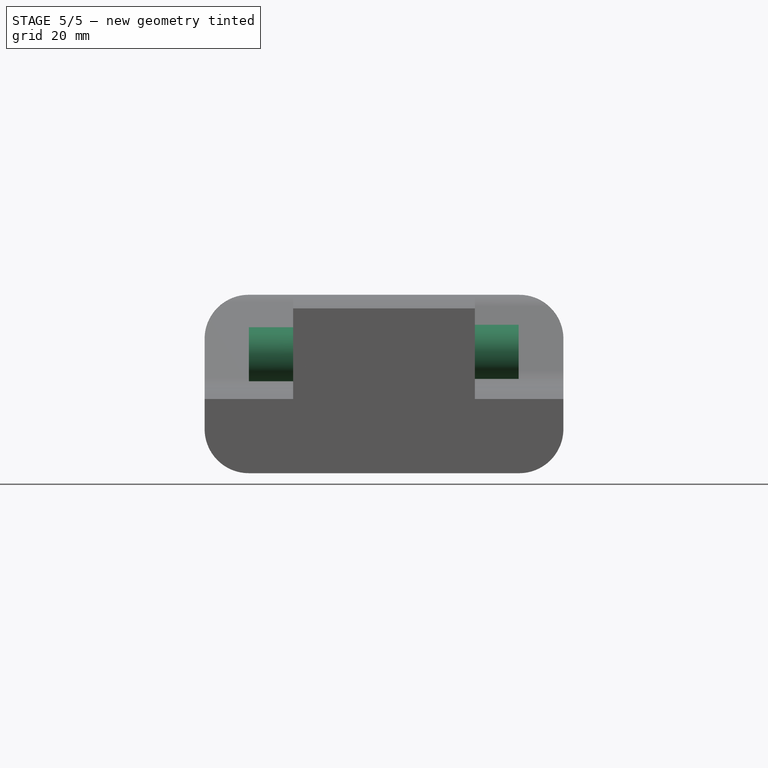
[diagram: stage 5 of 5 — front view after this stage's code; geometry added in this stage tinted green]
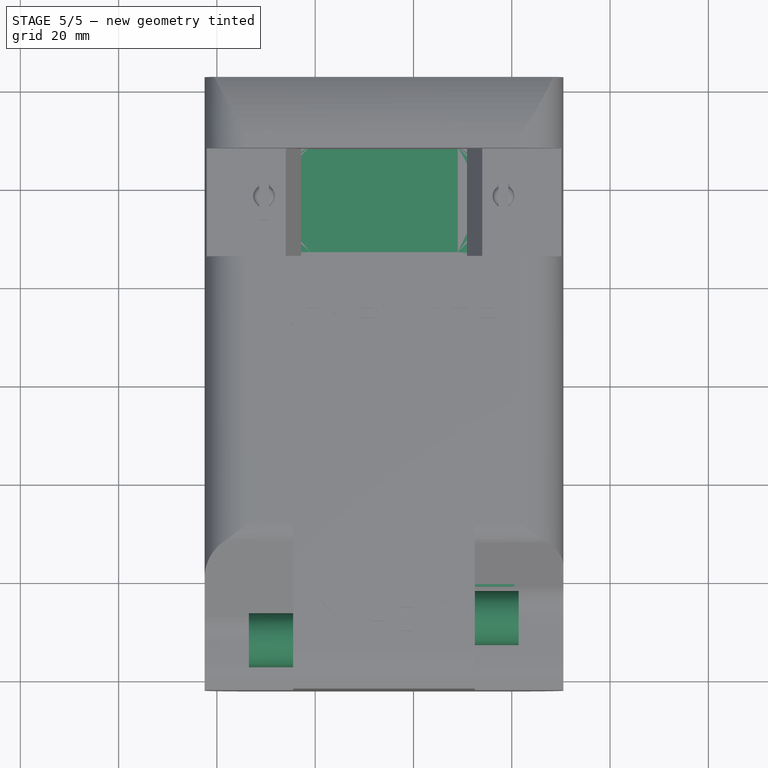
[diagram: stage 5 of 5 — top view after this stage's code; geometry added in this stage tinted green]
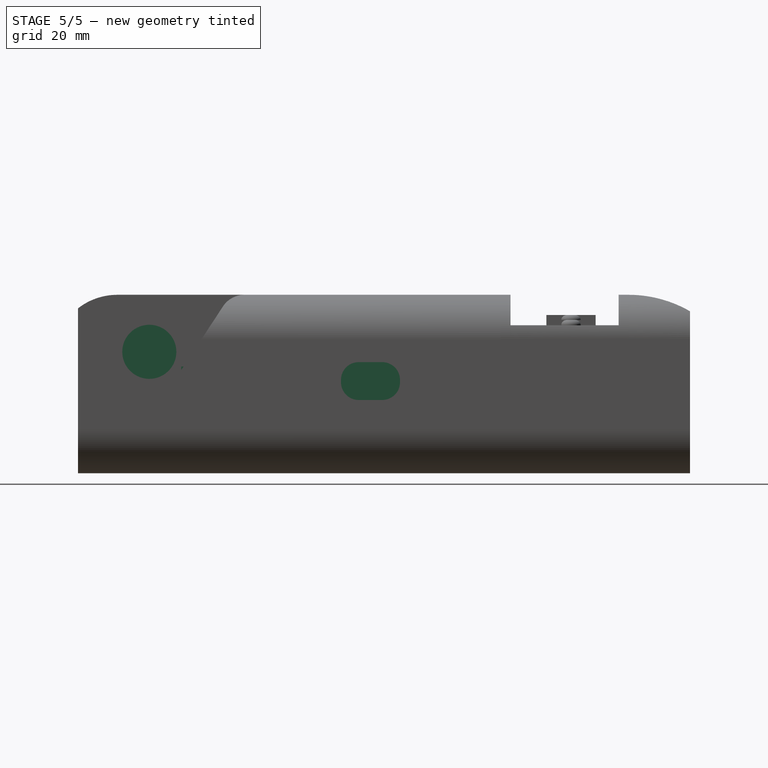
[diagram: stage 5 of 5 — right view after this stage's code; geometry added in this stage tinted green]
FEATURE [Part::Box] Box  label="PCB"
  Height = 1.1
  Length = 68
  Width = 120
FEATURE [Part::Box] Box001  label="trinket"
  Height = 7
  Length = 18
  Placement = pos=(3,42,1.1) rot=(0,0,1;0rad)
  Width = 38
FEATURE [Part::Box] Box002  label="powerboost"
  Height = 10
  Length = 36
  Placement = pos=(28,46,1.1) rot=(0,0,1;0rad)
  Width = 22
FEATURE [Part::Box] Box003  label="display"
  Height = 6
  Length = 43
  Placement = pos=(12,80,1.1) rot=(0,0,1;0rad)
  Width = 36
FEATURE [Part::Box] Box004  label="barometer"
  Height = 5
  Length = 17
  Placement = pos=(4,20,-5) rot=(0,0,1;0rad)
  Width = 20
FEATURE [Part::Box] Box005  label="valvebooster"
  Height = 7.5
  Length = 12
  Placement = pos=(48.5,19,1.1) rot=(0,0,1;0rad)
  Width = 22
FEATURE [Part::Box] Box006  label="sensor"
  Height = 13
  Length = 13
  Placement = pos=(29.5,67.5,1.1) rot=(0,0,1;0rad)
  Width = 13
FEATURE [Part::Box] Box008  label="e-valve body"
  Height = 20
  Length = 20
  Placement = pos=(24,0,0) rot=(0,0,1;0rad)
  Width = 43
FEATURE [Part::Cylinder] Cylinder  label="O2in"
  Angle = 360
  Height = 17.5
  Placement = pos=(6.5,5.5,10) rot=(0,1,0;1.5708rad)
  Radius = 5.5
FEATURE [Part::Cylinder] Cylinder001  label="O2out"
  Angle = 360
  Height = 17.4
  Placement = pos=(44,10,10.5) rot=(0,1,0;1.5708rad)
  Radius = 5.5
FEATURE [Part::Cylinder] Cylinder002  label="O2sense"
  Angle = 360
  Height = 15.5
  Placement = pos=(34,43,10) rot=(-1,0,0;1.5708rad)
  Radius = 4
FEATURE [Part::MultiFuse] Fusion  label="e-valve"
  Placement = pos=(0,2.5,1.1) rot=(0,0,1;0rad)
  Shapes = -> [Cylinder,Box008,Cylinder001,Cylinder002]
FEATURE [Part::Box] Box009  label="butbase"
  Height = 4
  Length = 12
  Width = 12
FEATURE [Part::Cylinder] Cylinder003  label="butcyl"
  Angle = 360
  Height = 5
  Placement = pos=(6,6,4) rot=(0,0,1;0rad)
  Radius = 3.5
FEATURE [Part::MultiFuse] Fusion001  label="button"
  Placement = pos=(52,92,1.1) rot=(0,0,1;0rad)
  Shapes = -> [Cylinder003,Box009]
FEATURE [Part::Box] Box010  label="butbase001"
  Height = 6.5
  Length = 12
  Width = 12
FEATURE [Part::Cylinder] Cylinder004  label="butcyl001"
  Angle = 360
  Height = 2.5
  Placement = pos=(6,6,5.5) rot=(0,0,1;0rad)
  Radius = 2.75
FEATURE [Part::MultiFuse] Fusion002  label="button_onoff"
  Placement = pos=(3.5,92,1.1) rot=(0,0,1;0rad)
  Shapes = -> [Cylinder004,Box010]
FEATURE [Part::Box] Box011  label="battery"
  Height = 11
  Length = 50
  Placement = pos=(9,52,-11) rot=(0,0,1;0rad)
  Width = 60
FEATURE [App::DocumentObjectGroup] Group  label="board"
  Group = -> [Box001,Box002,Box003,Box004,Box005,Box006,Fusion,Fusion001,Fusion002,Box011,Box]
FEATURE [Sketcher::SketchObject] Sketch001  label="display_cover"
  sketch-geometry (10):
    g0: LineSegment StartX=2 StartY=120 StartZ=0 EndX=66 EndY=120 EndZ=0
    g1: LineSegment StartX=66 StartY=120 StartZ=0 EndX=66 EndY=84 EndZ=0
    g2: LineSegment StartX=66 StartY=84 StartZ=0 EndX=2 EndY=84 EndZ=0
    g3: LineSegment StartX=2 StartY=84 StartZ=0 EndX=2 EndY=120 EndZ=0
    g4: LineSegment StartX=19 StartY=108.5 StartZ=0 EndX=49 EndY=108.5 EndZ=0
    g5: LineSegment StartX=49 StartY=108.5 StartZ=0 EndX=49 EndY=87 EndZ=0
    g6: LineSegment StartX=49 StartY=87 StartZ=0 EndX=19 EndY=87 EndZ=0
    g7: LineSegment StartX=19 StartY=87 StartZ=0 EndX=19 EndY=108.5 EndZ=0
    g8: Circle CenterX=9.6 CenterY=98.3 CenterZ=0 NormalX=0 NormalY=0 NormalZ=1 Radius=5
    g9: Circle CenterX=58.3 CenterY=98.3 CenterZ=0 NormalX=0 NormalY=0 NormalZ=1 Radius=3.7
  constraints (30):
    c: Coincident(g0,g1)
    c: Coincident(g1,g2)
    c: Coincident(g2,g3)
    c: Coincident(g3,g0)
    c: Horizontal(g0)
    c: Horizontal(g2)
    c: Vertical(g1)
    c: Vertical(g3)
    c: DistanceY(g0) = 120
    c: DistanceX(g0) = 2
    c: DistanceX(g0) = 64
    c: DistanceY(g1) = -36
    c: Coincident(g4,g5)
    c: Coincident(g5,g6)
    c: Coincident(g6,g7)
    c: Coincident(g7,g4)
    c: Horizontal(g4)
    c: Horizontal(g6)
    c: Vertical(g5)
    c: Vertical(g7)
    c: DistanceY(g4,g0) = 11.5
    c: DistanceX(g4,g0) = 17
    c: DistanceX(g4,g0) = -17
    c: DistanceY(g5,g0) = 33
    c: DistanceX(g0,g8) = 7.6
    c: Radius(g8) = 5
    c: Radius(g9) = 3.7
    c: DistanceY(g8,g0) = 21.7
    c: DistanceY(g9,g0) = 21.7
    c: DistanceX(g9,g0) = -56.3
FEATURE [Part::Extrusion] Extrude  label="plexi"
  Base = -> Sketch001
  Dir = (0,0,3)
  Placement = pos=(0,0,7.6) rot=(0,0,1;0rad)
  Solid = true
FEATURE [Sketcher::SketchObject] Sketch026  label="base006"
  Placement = pos=(0,84,0) rot=(1,0,0;1.5708rad)
  sketch-geometry (29):
    g0: LineSegment StartX=1.6 StartY=1.2 StartZ=0 EndX=-1 EndY=1.2 EndZ=0
    g1: LineSegment StartX=-1 StartY=1.2 StartZ=0 EndX=-1 EndY=-0.0999968 EndZ=0
    g2: LineSegment StartX=-1 StartY=-0.0999968 StartZ=0 EndX=1.6 EndY=-0.0999968 EndZ=0
    g3: LineSegment StartX=1.6 StartY=-0.0999968 StartZ=0 EndX=1.6 EndY=-6.1 EndZ=0
    g4: LineSegment StartX=-2.5 StartY=14.2 StartZ=0 EndX=-2.5 EndY=-4.1 EndZ=0
    g5: LineSegment StartX=6.6 StartY=-11.1 StartZ=0 EndX=61.4 EndY=-11.1 EndZ=0
    g6: ArcOfCircle CenterX=6.6 CenterY=-6.1 CenterZ=0 NormalX=0 NormalY=0 NormalZ=1 Radius=5 StartAngle=3.14159 EndAngle=4.71239
    g7: LineSegment StartX=70.5 StartY=-4.09816 StartZ=0 EndX=70.5 EndY=14.2 EndZ=0
    g8: LineSegment StartX=66.4018 StartY=1.20184 StartZ=0 EndX=69 EndY=1.20184 EndZ=0
    g9: LineSegment StartX=69 StartY=1.20184 StartZ=0 EndX=69 EndY=-0.09816 EndZ=0
    g10: LineSegment StartX=69 StartY=-0.09816 StartZ=0 EndX=66.4018 EndY=-0.09816 EndZ=0
    g11: LineSegment StartX=66.4018 StartY=-0.09816 StartZ=0 EndX=66.4018 EndY=-6.09816 EndZ=0
    g12: ArcOfCircle CenterX=61.4 CenterY=-6.09816 CenterZ=0 NormalX=0 NormalY=0 NormalZ=1 Radius=5.00184 StartAngle=4.71239 EndAngle=6.28319
    g13: LineSegment StartX=6.5 StartY=-13.1 StartZ=0 EndX=61.4982 EndY=-13.1 EndZ=0
    g14: ArcOfCircle CenterX=6.5 CenterY=-4.1 CenterZ=0 NormalX=0 NormalY=0 NormalZ=1 Radius=9 StartAngle=3.14159 EndAngle=4.71239
    g15: ArcOfCircle CenterX=61.4982 CenterY=-4.09816 CenterZ=0 NormalX=0 NormalY=0 NormalZ=1 Radius=9.00184 StartAngle=4.71239 EndAngle=6.28319
    g16: LineSegment StartX=3.5 StartY=7.47071 StartZ=0 EndX=1.6 EndY=1.2 EndZ=0
    g17: LineSegment StartX=64.3846 StartY=10.9018 StartZ=0 EndX=64.3846 EndY=5.40184 EndZ=0
    g18: LineSegment StartX=64.3846 StartY=5.40184 StartZ=0 EndX=66.4018 EndY=5.40184 EndZ=0
    g19: LineSegment StartX=66.4018 StartY=5.40184 StartZ=0 EndX=66.4018 EndY=1.20184 EndZ=0
    g20: LineSegment StartX=6.5 StartY=23.2 StartZ=0 EndX=61.5 EndY=23.2 EndZ=0
    g21: ArcOfCircle CenterX=6.5 CenterY=14.2 CenterZ=0 NormalX=0 NormalY=0 NormalZ=1 Radius=9 StartAngle=1.5708 EndAngle=3.14159
    g22: ArcOfCircle CenterX=61.5 CenterY=14.2 CenterZ=0 NormalX=0 NormalY=0 NormalZ=1 Radius=9 StartAngle=0 EndAngle=1.5708
    g23: LineSegment StartX=3.5 StartY=7.47071 StartZ=0 EndX=3.5 EndY=10.9707 EndZ=0
    g24: LineSegment StartX=3.5 StartY=10.9707 StartZ=0 EndX=14.2 EndY=10.9707 EndZ=0
    g25: LineSegment StartX=14.2 StartY=10.9707 StartZ=0 EndX=17.6 EndY=7 EndZ=0
    g26: LineSegment StartX=17.6 StartY=7 StartZ=0 EndX=50.4 EndY=7 EndZ=0
    g27: LineSegment StartX=50.4 StartY=7 StartZ=0 EndX=54.2 EndY=10.9018 EndZ=0
    g28: LineSegment StartX=54.2 StartY=10.9018 StartZ=0 EndX=64.3846 EndY=10.9018 EndZ=0
  constraints (75):
    c: Coincident(g0,g1)
    c: Vertical(g1)
    c: Coincident(g1,g2)
    c: Horizontal(g2)
    c: Coincident(g2,g3)
    c: Vertical(g3)
    c: Vertical(g4)
    c: Horizontal(g0)
    c: Horizontal(g5)
    c: Tangent(g3,g6) = -1.5708
    c: Tangent(g5,g6) = -1.5708
    c: Vertical(g7)
    c: Horizontal(g8)
    c: Coincident(g8,g9)
    c: Coincident(g9,g10)
    c: Horizontal(g10)
    c: Coincident(g10,g11)
    c: Vertical(g11)
    c: Vertical(g9)
    c: Tangent(g5,g12) = -1.5708
    c: Tangent(g11,g12) = 1.5708
    c: Horizontal(g13)
    c: Tangent(g4,g14) = -1.5708
    c: Tangent(g13,g14) = -1.5708
    c: Tangent(g13,g15) = -1.5708
    c: Tangent(g7,g15) = -1.5708
    c: DistanceY(g1) = -1.3
    c: DistanceY(g9) = -1.3
    c: DistanceY(g3,g2) = 6
    c: DistanceY(g11,g10) = 6
    c: DistanceY(g3,g5) = -5
    c: DistanceY(g5,g13) = -2
    c: DistanceY(g4,g2) = 4
    c: DistanceY(g7,g10) = 4
    c: Coincident(g16,g0)
    c: DistanceX(g10,g8) = 0
    c: DistanceX(g2,g0) = 0
    c: Coincident(g17,g18)
    c: Horizontal(g18)
    c: Coincident(g18,g19)
    c: Coincident(g19,g8)
    c: Vertical(g17)
    c: DistanceY(g17) = -5.5
    c: Vertical(g19)
    c: Horizontal(g20)
    c: Tangent(g20,g21) = 1.5708
    c: Tangent(g4,g21) = -1.5708
    c: Tangent(g20,g22) = 1.5708
    c: Tangent(g7,g22) = -1.5708
    c: DistanceX(g4,g20) = 9
    c: DistanceX(g7,g20) = -9
    c: DistanceX(g16) = 3.5
    c: DistanceX(g1) = -1
    c: DistanceX(g8) = 69
    c: DistanceY(g19) = -4.2
    c: Vertical(g23)
    c: Coincident(g16,g23)
    c: Coincident(g23,g24)
    c: Horizontal(g24)
    c: Coincident(g24,g25)
    c: Coincident(g25,g26)
    c: Horizontal(g26)
    c: Coincident(g26,g27)
    c: Coincident(g27,g28)
    c: Coincident(g28,g17)
    c: Horizontal(g28)
    c: DistanceY(g23) = 3.5
    c: DistanceY(g16) = 7.47071
    c: DistanceY(g25) = 7
    c: DistanceX(g25) = 17.6
    c: DistanceX(g24,g25) = 3.4
    c: DistanceX(g26) = 50.4
    c: DistanceX(g17) = 64.3846
    c: DistanceY(g17) = 5.40184
    c: DistanceX(g26,g27) = 3.8
FEATURE [Part::Extrusion] Extrude014  label="shell_ring"
  Base = -> Sketch026
  Dir = (0,2,0)
  Solid = true
FEATURE [Sketcher::SketchObject] Sketch037  label="display_cover003"
  sketch-geometry (10):
    g0: LineSegment StartX=2 StartY=120 StartZ=0 EndX=66 EndY=120 EndZ=0
    g1: LineSegment StartX=66 StartY=120 StartZ=0 EndX=66 EndY=84 EndZ=0
    g2: LineSegment StartX=66 StartY=84 StartZ=0 EndX=2 EndY=84 EndZ=0
    g3: LineSegment StartX=2 StartY=84 StartZ=0 EndX=2 EndY=120 EndZ=0
    g4: LineSegment StartX=19 StartY=108.5 StartZ=0 EndX=49 EndY=108.5 EndZ=0
    g5: LineSegment StartX=49 StartY=108.5 StartZ=0 EndX=49 EndY=87 EndZ=0
    g6: LineSegment StartX=49 StartY=87 StartZ=0 EndX=19 EndY=87 EndZ=0
    g7: LineSegment StartX=19 StartY=87 StartZ=0 EndX=19 EndY=108.5 EndZ=0
    g8: Circle CenterX=9.6 CenterY=98.3 CenterZ=0 NormalX=0 NormalY=0 NormalZ=1 Radius=4
    g9: Circle CenterX=58.3 CenterY=97.8 CenterZ=0 NormalX=0 NormalY=0 NormalZ=1 Radius=4
  constraints (30):
    c: Coincident(g0,g1)
    c: Coincident(g1,g2)
    c: Coincident(g2,g3)
    c: Coincident(g3,g0)
    c: Horizontal(g0)
    c: Horizontal(g2)
    c: Vertical(g1)
    c: Vertical(g3)
    c: DistanceY(g0) = 120
    c: DistanceX(g0) = 2
    c: DistanceX(g0) = 64
    c: DistanceY(g1) = -36
    c: Coincident(g4,g5)
    c: Coincident(g5,g6)
    c: Coincident(g6,g7)
    c: Coincident(g7,g4)
    c: Horizontal(g4)
    c: Horizontal(g6)
    c: Vertical(g5)
    c: Vertical(g7)
    c: DistanceY(g4,g0) = 11.5
    c: DistanceX(g4,g0) = 17
    c: DistanceX(g4,g0) = -17
    c: DistanceY(g5,g0) = 33
    c: DistanceX(g0,g8) = 7.6
    c: Radius(g8) = 4
    c: Radius(g9) = 4
    c: DistanceY(g8,g0) = 21.7
    c: DistanceY(g9,g0) = 22.2
    c: DistanceX(g9,g0) = -56.3
FEATURE [Part::Extrusion] Extrude025  label="ui_plate_simp001"
  Base = -> Sketch037
  Dir = (0,0,3)
  Placement = pos=(0,0,7.6) rot=(0,0,1;0rad)
  Solid = true
FEATURE [Sketcher::SketchObject] Sketch038  label="display_cover004"
  sketch-geometry (8):
    g0: LineSegment StartX=16 StartY=111.5 StartZ=0 EndX=52 EndY=111.5 EndZ=0
    g1: LineSegment StartX=52 StartY=111.5 StartZ=0 EndX=52 EndY=84 EndZ=0
    g2: LineSegment StartX=52 StartY=84 StartZ=0 EndX=16 EndY=84 EndZ=0
    g3: LineSegment StartX=16 StartY=84 StartZ=0 EndX=16 EndY=111.5 EndZ=0
    g4: LineSegment StartX=19 StartY=108.5 StartZ=0 EndX=49 EndY=108.5 EndZ=0
    g5: LineSegment StartX=49 StartY=108.5 StartZ=0 EndX=49 EndY=87 EndZ=0
    g6: LineSegment StartX=49 StartY=87 StartZ=0 EndX=19 EndY=87 EndZ=0
    g7: LineSegment StartX=19 StartY=87 StartZ=0 EndX=19 EndY=108.5 EndZ=0
  constraints (24):
    c: Coincident(g0,g1)
    c: Coincident(g1,g2)
    c: Coincident(g2,g3)
    c: Coincident(g3,g0)
    c: Horizontal(g0)
    c: Horizontal(g2)
    c: Vertical(g1)
    c: Vertical(g3)
    c: Coincident(g4,g5)
    c: Coincident(g5,g6)
    c: Coincident(g6,g7)
    c: Coincident(g7,g4)
    c: Horizontal(g4)
    c: Horizontal(g6)
    c: Vertical(g5)
    c: Vertical(g7)
    c: DistanceY(g6) = 87
    c: DistanceY(g7) = 21.5
    c: DistanceX(g6) = -30
    c: DistanceY(g2,g6) = 3
    c: DistanceX(g4,g0) = -3
    c: DistanceY(g4,g0) = 3
    c: DistanceX(g4,g0) = 3
    c: DistanceX(g6) = 19
FEATURE [Part::Extrusion] Extrude026  label="basebevel001"
  Base = -> Sketch038
  Dir = (0,0,1)
  Placement = pos=(0,0,6.6) rot=(0,0,1;0rad)
  Solid = true
FEATURE [Sketcher::SketchObject] Sketch039  label="basebutton001"
  sketch-geometry (2):
    g0: Circle CenterX=58.3 CenterY=97.8 CenterZ=0 NormalX=0 NormalY=0 NormalZ=1 Radius=4
    g1: Circle CenterX=58.3 CenterY=97.8 CenterZ=0 NormalX=0 NormalY=0 NormalZ=1 Radius=4.8
  constraints (5):
    c: Radius(g0) = 4
    c: DistanceX(g0) = 58.3
    c: DistanceY(g0) = 97.8
    c: Coincident(g1,g0)
    c: Radius(g1) = 4.8
FEATURE [Part::Extrusion] Extrude027  label="basebutton_t001"
  Base = -> Sketch039
  Dir = (0,0,2.6)
  Placement = pos=(0,0,5) rot=(0,0,1;0rad)
  Solid = true
FEATURE [Part::MultiFuse] Fusion015
  Shapes = -> [Extrude025,Extrude026,Extrude027]
FEATURE [Part::Chamfer] Chamfer  label="ui_plate_shp"
  Base = -> Fusion015
  Edges = 4 edges r=2.4: [Edge17,Edge35,Edge37,Edge39]
FEATURE [Part::Box] Box023  label="control_button_rec_c"
  Height = 8.5
  Length = 2
  Placement = pos=(57.3,93.3,9.6) rot=(0,0,1;0rad)
  Width = 10
FEATURE [Part::Box] Box025  label="control_button_rec_b"
  Height = 1
  Length = 6
  Placement = pos=(55.3,91.3,9.6) rot=(0,0,1;0rad)
  Width = 14
FEATURE [Part::MultiFuse] Fusion036  label="control_button_rec"
  Shapes = -> [Box025,Box023]
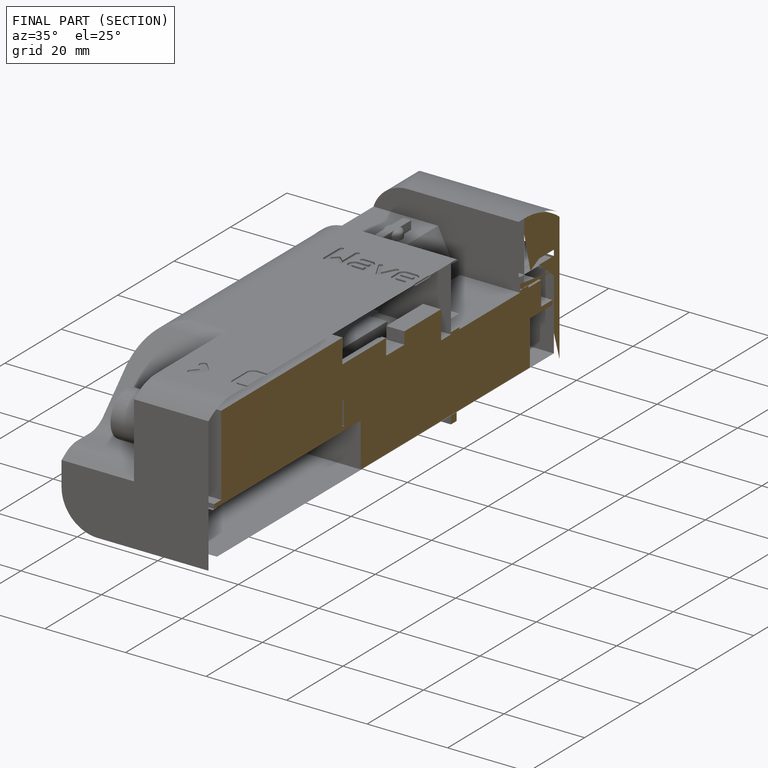
[diagram: finished part — half-section view (interior)]
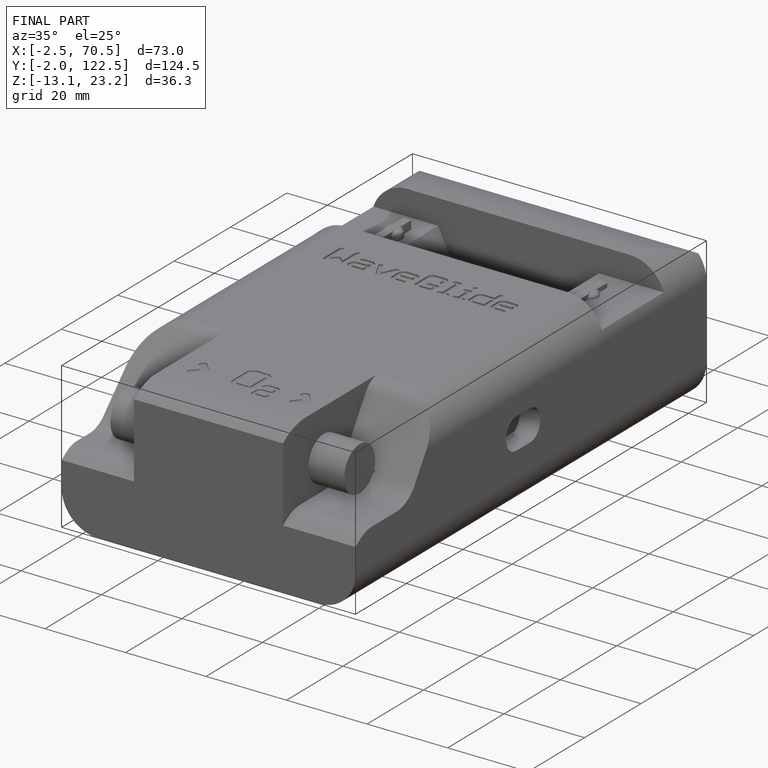
[diagram: finished part — iso view with bounding-box wireframe]
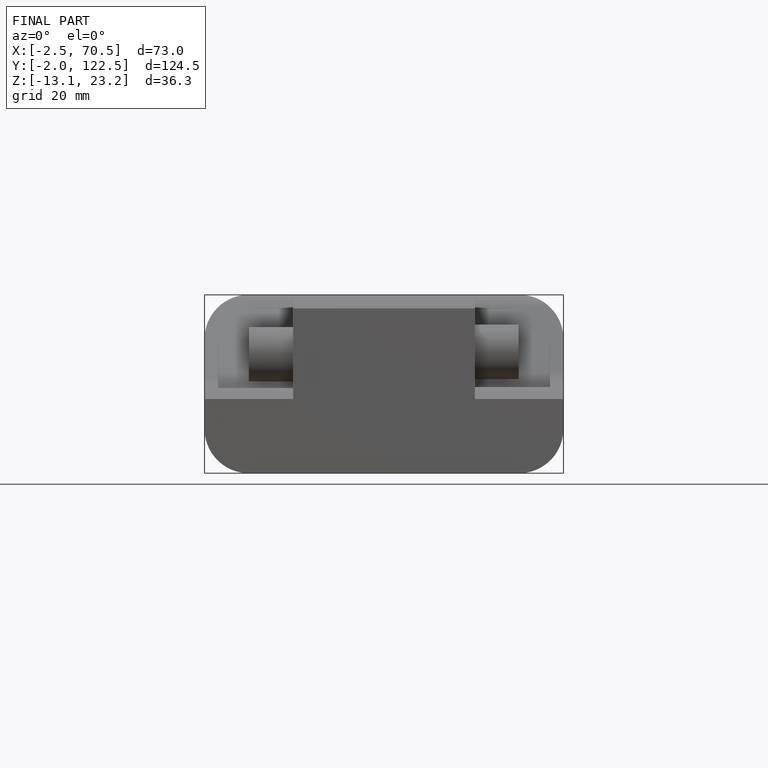
[diagram: finished part — front view with bounding-box wireframe]
